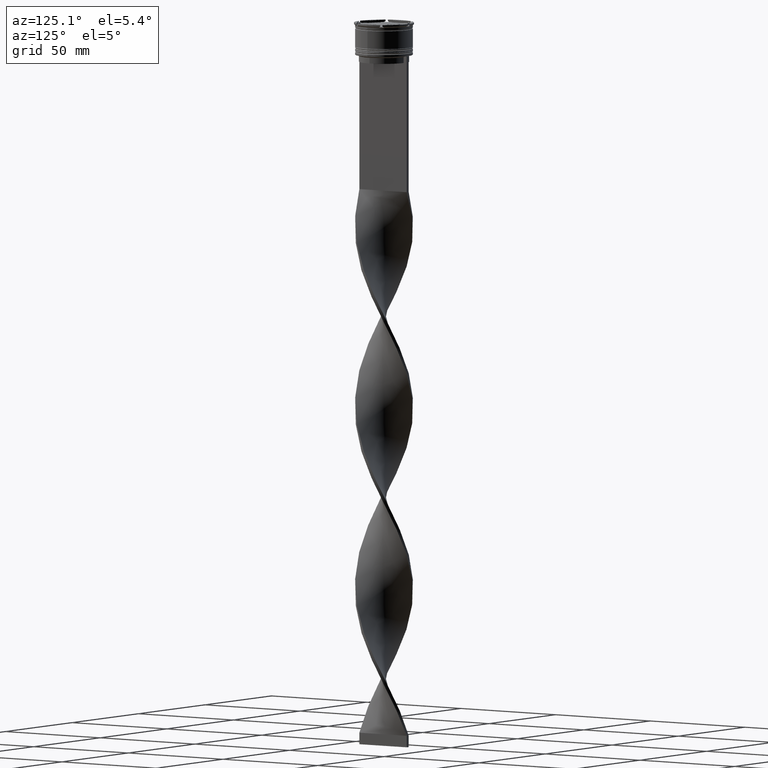
[diagram: clean part render]
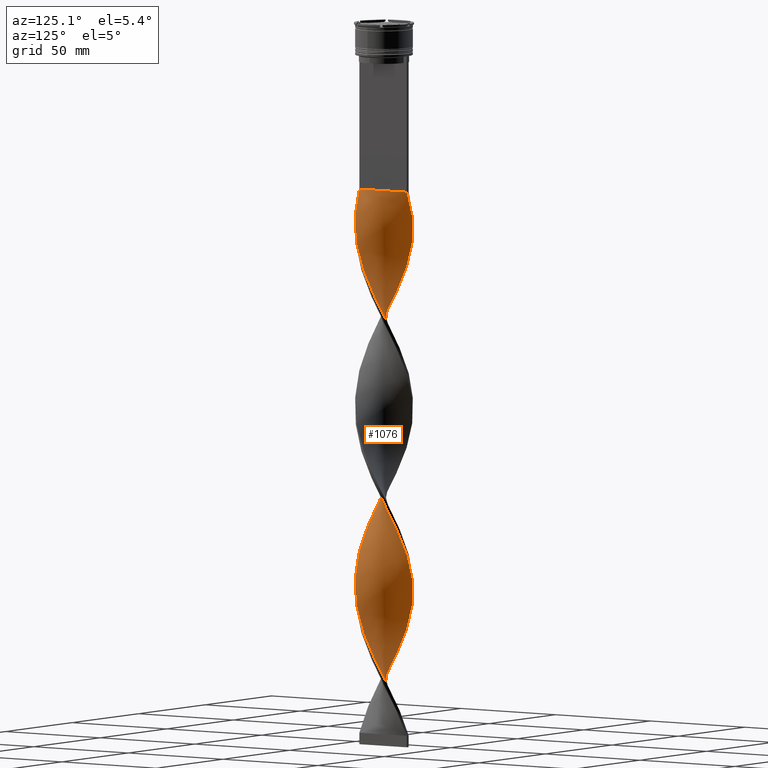
[diagram: same view with one face highlighted and labeled with its STEP entity id]
A machine part, auxiliary view. The second image highlights one B-rep face of the part: STEP entity #1076.
In plain terms, the highlighted face is a freeform B-spline surface patch.
Its self-contained STEP definition (entity closure, byte-faithful):
#5 = CARTESIAN_POINT ( 'NONE',  ( -11.87210446662093588, -4.103282305125621754, -122.1666666666666998 ) ) ;
#11 = CARTESIAN_POINT ( 'NONE',  ( 12.01658309743656261, 3.658622801590747819, -275.5666666666666060 ) ) ;
#23 = CARTESIAN_POINT ( 'NONE',  ( 12.22877840865904986, 2.696197068449238898, -116.2666666666666657 ) ) ;
#25 = CARTESIAN_POINT ( 'NONE',  ( -7.571135413668909742, 10.02305835011481605, -248.0333333333333314 ) ) ;
#36 = CARTESIAN_POINT ( 'NONE',  ( -10.29787303672001997, 7.192885447545555699, -255.9000000000000625 ) ) ;
#43 = CARTESIAN_POINT ( 'NONE',  ( 12.36783393232032502, -2.195557779805335841, -106.4333333333333513 ) ) ;
#47 = CARTESIAN_POINT ( 'NONE',  ( 12.11996919947063311, 3.149420042465475245, -198.8666666666666742 ) ) ;
#57 = CARTESIAN_POINT ( 'NONE',  ( 10.02305835011481605, -7.571135413668909742, -251.9666666666666970 ) ) ;
#62 = CARTESIAN_POINT ( 'NONE',  ( -2.696197068449241119, -12.22877840865904808, -305.0666666666666629 ) ) ;
#69 = CARTESIAN_POINT ( 'NONE',  ( -5.493386832225669814, -11.29630431837985682, -299.1666666666666856 ) ) ;
#74 = CARTESIAN_POINT ( 'NONE',  ( 10.79708867754994017, 6.343136139885610980, -281.4666666666666401 ) ) ;
#83 = CARTESIAN_POINT ( 'NONE',  ( 7.571135413668909742, -10.02305835011481783, -169.3666666666667027 ) ) ;
#84 = CARTESIAN_POINT ( 'NONE',  ( -1.214664557556535351, -12.46343010621939307, -226.3999999999999773 ) ) ;
#86 = CARTESIAN_POINT ( 'NONE',  ( -6.740552907874703514, 10.55355136890620038, -246.0666666666666629 ) ) ;
#106 = CARTESIAN_POINT ( 'NONE',  ( 3.658622801590746043, 12.01658309743656261, -224.4333333333333371 ) ) ;
#107 = CARTESIAN_POINT ( 'NONE',  ( 12.55902628011846645, -0.2337713353077312817, -267.6999999999999318 ) ) ;
#110 = CARTESIAN_POINT ( 'NONE',  ( 0.7500000000000002220, -12.50000000000000000, -73.00000000000001421 ) ) ;
#134 = CARTESIAN_POINT ( 'NONE',  ( 1.214664557556530688, -12.46343010621939484, -155.6000000000000227 ) ) ;
#135 = CARTESIAN_POINT ( 'NONE',  ( 12.01658309743656261, 3.658622801590747819, -275.5666666666666060 ) ) ;
#155 = CARTESIAN_POINT ( 'NONE',  ( -4.576004816908209705, -11.65644370790820794, -143.7999999999999829 ) ) ;
#156 = CARTESIAN_POINT ( 'NONE',  ( -7.571135413668918623, -10.02305835011481072, -212.6333333333333826 ) ) ;
#157 = LINE ( 'NONE', #1245, #2725 ) ;
#158 = ORIENTED_EDGE ( 'NONE', *, *, #1435, .F. ) ;
#178 = CARTESIAN_POINT ( 'NONE',  ( -12.50000000000000000, 0.7500000000000009992, -112.3333333333333428 ) ) ;
#179 = CARTESIAN_POINT ( 'NONE',  ( -7.192885447545552147, 10.29787303672002352, -165.4333333333333371 ) ) ;
#195 = CARTESIAN_POINT ( 'NONE',  ( 2.195557779805334064, -12.36783393232032680, -157.5666666666666629 ) ) ;
#226 = CARTESIAN_POINT ( 'NONE',  ( -11.29630431837985505, -5.493386832225671590, -200.8333333333333428 ) ) ;
#244 = CARTESIAN_POINT ( 'NONE',  ( 5.909970402080495511, -11.08404438769758293, -165.4333333333333655 ) ) ;
#248 = CARTESIAN_POINT ( 'NONE',  ( 4.103282305125623530, 11.87210446662093588, -141.8333333333333144 ) ) ;
#251 = EDGE_CURVE ( 'NONE', #840, #3129, #157, .T. ) ;
#273 = CARTESIAN_POINT ( 'NONE',  ( -12.01658309743656439, -3.658622801590741158, -196.9000000000000057 ) ) ;
#274 = CARTESIAN_POINT ( 'NONE',  ( -2.195557779805334508, 12.36783393232032502, -78.90000000000001990 ) ) ;
#296 = CARTESIAN_POINT ( 'NONE',  ( 2.195557779805335397, 12.36783393232032502, -145.7666666666666515 ) ) ;
#300 = CARTESIAN_POINT ( 'NONE',  ( 0.7500000000000002220, -12.50000000000000000, -73.00000000000001421 ) ) ;
#313 = CARTESIAN_POINT ( 'NONE',  ( 9.671873490467490342, 7.954078399437124247, -128.0666666666666629 ) ) ;
#314 = CARTESIAN_POINT ( 'NONE',  ( -9.671873490467488566, 7.954078399437126023, -96.60000000000000853 ) ) ;
#327 = CARTESIAN_POINT ( 'NONE',  ( -5.909970402080497287, 11.08404438769758293, -86.76666666666666572 ) ) ;
#335 = CARTESIAN_POINT ( 'NONE',  ( 12.55902628011846645, -0.2337713353077312817, -267.6999999999999318 ) ) ;
#349 = CARTESIAN_POINT ( 'NONE',  ( 5.909970402080499952, 11.08404438769758293, -137.9000000000000625 ) ) ;
#353 = CARTESIAN_POINT ( 'NONE',  ( -4.576004816908209705, -11.65644370790820794, -143.7999999999999829 ) ) ;
#367 = CARTESIAN_POINT ( 'NONE',  ( -10.02305835011481605, -7.571135413668910630, -287.3666666666667311 ) ) ;
#372 = CARTESIAN_POINT ( 'NONE',  ( -11.65644370790820794, 4.576004816908208817, -261.7999999999999545 ) ) ;
#377 = CARTESIAN_POINT ( 'NONE',  ( -0.7499999999999986677, 12.50000000000000000, -309.0000000000000000 ) ) ;
#386 = CARTESIAN_POINT ( 'NONE',  ( -12.01658309743656083, 3.658622801590749152, -263.7666666666667084 ) ) ;
#392 = CARTESIAN_POINT ( 'NONE',  ( 1.733771335307739747, 12.44097371988153533, -228.3666666666666458 ) ) ;
#406 = CARTESIAN_POINT ( 'NONE',  ( -8.308504678941934785, 9.369164850721755755, -250.0000000000000000 ) ) ;
#413 = CARTESIAN_POINT ( 'NONE',  ( 12.46343010621939484, -1.214664557556532909, -108.3999999999999915 ) ) ;
#416 = CARTESIAN_POINT ( 'NONE',  ( -12.22877840865904986, 2.696197068449240231, -265.7333333333333485 ) ) ;
#423 = CARTESIAN_POINT ( 'NONE',  ( 12.22877840865904986, 2.696197068449238898, -273.5999999999999659 ) ) ;
#432 = CARTESIAN_POINT ( 'NONE',  ( 12.46343010621939484, 1.214664557556529800, -194.9333333333333371 ) ) ;
#436 = CARTESIAN_POINT ( 'NONE',  ( 11.87210446662093410, 4.103282305125625307, -200.8333333333333428 ) ) ;
#448 = CARTESIAN_POINT ( 'NONE',  ( 5.909970402080496399, -11.08404438769758293, -165.4333333333333371 ) ) ;
#449 = CARTESIAN_POINT ( 'NONE',  ( 5.493386832225668925, -11.29630431837985682, -240.1666666666666856 ) ) ;
#453 = CARTESIAN_POINT ( 'NONE',  ( -3.658622801590750484, -12.01658309743656083, -303.0999999999999659 ) ) ;
#473 = CARTESIAN_POINT ( 'NONE',  ( 1.733771335307739747, 12.44097371988153533, -228.3666666666666742 ) ) ;
#474 = CARTESIAN_POINT ( 'NONE',  ( -11.65644370790820972, -4.576004816908206152, -198.8666666666666742 ) ) ;
#477 = CARTESIAN_POINT ( 'NONE',  ( 4.576004816908207928, -11.65644370790820794, -80.86666666666667425 ) ) ;
#500 = CARTESIAN_POINT ( 'NONE',  ( -0.7500000000000017764, -12.50000000000000000, -151.6666666666666856 ) ) ;
#501 = CARTESIAN_POINT ( 'NONE',  ( -10.55355136890619860, 6.740552907874705291, -175.2666666666666799 ) ) ;
#524 = CARTESIAN_POINT ( 'NONE',  ( 10.29787303672002530, -7.192885447545551258, -177.2333333333333485 ) ) ;
#525 = CARTESIAN_POINT ( 'NONE',  ( -12.46343010621939307, 1.214664557556534463, -187.0666666666666629 ) ) ;
#536 = CARTESIAN_POINT ( 'NONE',  ( -12.11996919947063311, -3.149420042465476577, -120.2000000000000028 ) ) ;
#547 = CARTESIAN_POINT ( 'NONE',  ( 10.02305835011481605, -7.571135413668910630, -251.9666666666666686 ) ) ;
#564 = CARTESIAN_POINT ( 'NONE',  ( -3.149420042465477465, 12.11996919947063134, -80.86666666666667425 ) ) ;
#569 = CARTESIAN_POINT ( 'NONE',  ( 12.01658309743656261, 3.658622801590747819, -118.2333333333333343 ) ) ;
#577 =( BOUNDED_CURVE ( )  B_SPLINE_CURVE ( 2, ( #1050, #2431, #3831, #1072, #1807, #732, #2493, #2474, #752, #1449, #1746, #2755, #713, #1027, #1788, #2091, #3160, #43, #413, #2798, #3138, #2069, #23, #3891, #1429, #1091, #3207, #1364, #2820, #2454, #3184, #2409, #3810, #349, #1727, #3119, #1382, #2778, #4167, #4187, #3850, #2109, #3504, #4206, #3305, #2586, #2560, #179, #1533, #2610, #2246, #3619, #501, #1555, #1881, #887, #2954, #4274, #525, #3570, #1927, #1199, #3984, #4343, #474, #1467, #1157, #4248, #1904, #2539, #3283, #156, #3638, #1515, #3935, #1223, #842, #2928, #84, #4313, #1132, #866, #2196, #2518, #1489, #449, #4005, #2266, #3661, #1831, #3226, #547, #2857, #2224, #3915, #797, #3592, #2173, #1855, #107, #817, #2887, #3259, #135, #2908, #4293, #1175, #3958, #2291, #1675, #3688, #956, #1625, #3374, #3069, #4388, #1244, #666, #4456, #3352, #978 ),
 .UNSPECIFIED., .F., .F. ) 
 B_SPLINE_CURVE_WITH_KNOTS ( ( 3, 2, 2, 2, 2, 2, 2, 2, 2, 2, 2, 2, 2, 2, 2, 2, 2, 2, 2, 2, 2, 2, 2, 2, 2, 2, 2, 2, 2, 2, 2, 2, 2, 2, 2, 2, 2, 2, 2, 2, 2, 2, 2, 2, 2, 2, 2, 2, 2, 2, 2, 2, 2, 2, 2, 2, 2, 2, 2, 2, 3 ),
 ( 0.000000000000000000, 0.01250000000000000243, 0.02500000000000000486, 0.03749999999999999861, 0.05000000000000000971, 0.06250000000000000000, 0.07499999999999999722, 0.08749999999999998057, 0.1000000000000000194, 0.1125000000000000028, 0.1250000000000000000, 0.1375000000000000111, 0.1499999999999999944, 0.1625000000000000056, 0.1749999999999999611, 0.1875000000000000000, 0.2000000000000000389, 0.2124999999999999944, 0.2250000000000000056, 0.2374999999999999611, 0.2500000000000000000, 0.2625000000000000111, 0.2750000000000000222, 0.2874999999999999778, 0.2999999999999999889, 0.3125000000000000000, 0.3250000000000000111, 0.3375000000000000777, 0.3499999999999999223, 0.3624999999999999889, 0.3750000000000000000, 0.3875000000000000111, 0.4000000000000000777, 0.4124999999999999223, 0.4249999999999999889, 0.4375000000000000000, 0.4500000000000000111, 0.4625000000000000777, 0.4749999999999999223, 0.4874999999999999889, 0.5000000000000000000, 0.5124999999999999556, 0.5250000000000000222, 0.5374999999999999778, 0.5500000000000000444, 0.5625000000000000000, 0.5749999999999999556, 0.5875000000000000222, 0.5999999999999999778, 0.6125000000000000444, 0.6250000000000000000, 0.6374999999999999556, 0.6500000000000000222, 0.6624999999999999778, 0.6750000000000001554, 0.6875000000000000000, 0.6999999999999998446, 0.7125000000000000222, 0.7249999999999999778, 0.7375000000000001554, 0.7500000000000000000 ),
 .UNSPECIFIED. ) 
 CURVE ( )  GEOMETRIC_REPRESENTATION_ITEM ( )  RATIONAL_B_SPLINE_CURVE ( ( 1.000000000000000000, 0.9969173337331279638, 1.000000000000000000, 0.9969173337331279638, 1.000000000000000000, 0.9969173337331279638, 1.000000000000000000, 0.9969173337331279638, 1.000000000000000000, 0.9969173337331279638, 1.000000000000000000, 0.9969173337331279638, 1.000000000000000000, 0.9969173337331279638, 1.000000000000000000, 0.9969173337331279638, 1.000000000000000000, 0.9969173337331279638, 1.000000000000000000, 0.9969173337331279638, 1.000000000000000000, 0.9969173337331279638, 1.000000000000000000, 0.9969173337331279638, 1.000000000000000000, 0.9969173337331279638, 1.000000000000000000, 0.9969173337331279638, 1.000000000000000000, 0.9969173337331279638, 1.000000000000000000, 0.9969173337331279638, 1.000000000000000000, 0.9969173337331279638, 1.000000000000000000, 0.9969173337331279638, 1.000000000000000000, 0.9969173337331279638, 1.000000000000000000, 0.9969173337331279638, 1.000000000000000000, 0.9969173337331279638, 1.000000000000000000, 0.9969173337331279638, 1.000000000000000000, 0.9969173337331279638, 1.000000000000000000, 0.9969173337331279638, 1.000000000000000000, 0.9969173337331279638, 1.000000000000000000, 0.9969173337331279638, 1.000000000000000000, 0.9969173337331279638, 1.000000000000000000, 0.9969173337331279638, 1.000000000000000000, 0.9969173337331279638, 1.000000000000000000, 0.9969173337331279638, 1.000000000000000000, 0.9969173337331279638, 1.000000000000000000, 0.9969173337331279638, 1.000000000000000000, 0.9969173337331279638, 1.000000000000000000, 0.9969173337331279638, 1.000000000000000000, 0.9969173337331279638, 1.000000000000000000, 0.9969173337331279638, 1.000000000000000000, 0.9969173337331279638, 1.000000000000000000, 0.9969173337331279638, 1.000000000000000000, 0.9969173337331279638, 1.000000000000000000, 0.9969173337331279638, 1.000000000000000000, 0.9969173337331279638, 1.000000000000000000, 0.9969173337331279638, 1.000000000000000000, 0.9969173337331279638, 1.000000000000000000, 0.9969173337331279638, 1.000000000000000000, 0.9969173337331279638, 1.000000000000000000, 0.9969173337331279638, 1.000000000000000000, 0.9969173337331279638, 1.000000000000000000, 0.9969173337331279638, 1.000000000000000000, 0.9969173337331279638, 1.000000000000000000, 0.9969173337331279638, 1.000000000000000000, 0.9969173337331279638, 1.000000000000000000, 0.9969173337331279638, 1.000000000000000000, 0.9969173337331279638, 1.000000000000000000, 0.9969173337331279638, 1.000000000000000000, 0.9969173337331279638, 1.000000000000000000, 0.9969173337331279638, 1.000000000000000000, 0.9969173337331279638, 1.000000000000000000, 0.9969173337331279638, 1.000000000000000000, 0.9969173337331279638, 1.000000000000000000, 0.9969173337331279638, 1.000000000000000000 ) ) 
 REPRESENTATION_ITEM ( '' )  );
#593 = CARTESIAN_POINT ( 'NONE',  ( 10.79708867754993840, -6.343136139885612756, -179.1999999999999886 ) ) ;
#596 = CARTESIAN_POINT ( 'NONE',  ( 5.909970402080499063, 11.08404438769758293, -137.9000000000000625 ) ) ;
#616 = CARTESIAN_POINT ( 'NONE',  ( 0.2337713353077321421, 12.55902628011846645, -149.7000000000000455 ) ) ;
#637 = CARTESIAN_POINT ( 'NONE',  ( 12.55902628011846645, -0.2337713353077312817, -110.3666666666666600 ) ) ;
#658 = CARTESIAN_POINT ( 'NONE',  ( -10.02305835011481250, 7.571135413668917735, -173.3000000000000114 ) ) ;
#659 = CARTESIAN_POINT ( 'NONE',  ( -11.65644370790820794, 4.576004816908208817, -104.4666666666666828 ) ) ;
#665 = CARTESIAN_POINT ( 'NONE',  ( -6.740552907874703514, 10.55355136890620038, -246.0666666666666629 ) ) ;
#666 = CARTESIAN_POINT ( 'NONE',  ( 2.195557779805335841, 12.36783393232032502, -303.0999999999999659 ) ) ;
#680 = CARTESIAN_POINT ( 'NONE',  ( 12.36783393232032502, -2.195557779805335397, -263.7666666666667652 ) ) ;
#693 = CARTESIAN_POINT ( 'NONE',  ( -7.192885447545556588, -10.29787303672002174, -137.9000000000000625 ) ) ;
#699 = CARTESIAN_POINT ( 'NONE',  ( 4.103282305125623530, 11.87210446662093588, -299.1666666666666856 ) ) ;
#713 = CARTESIAN_POINT ( 'NONE',  ( 10.55355136890620038, -6.740552907874703514, -96.60000000000000853 ) ) ;
#717 = CARTESIAN_POINT ( 'NONE',  ( 12.44097371988153533, -1.733771335307738859, -189.0333333333333314 ) ) ;
#724 = CARTESIAN_POINT ( 'NONE',  ( 8.715271351328699012, -9.045873944214958939, -248.0333333333333314 ) ) ;
#732 = CARTESIAN_POINT ( 'NONE',  ( 5.493386832225668925, -11.29630431837985682, -82.83333333333335702 ) ) ;
#734 = CARTESIAN_POINT ( 'NONE',  ( 5.493386832225676919, 11.29630431837985505, -220.5000000000000284 ) ) ;
#746 = CARTESIAN_POINT ( 'NONE',  ( -11.08404438769758293, -5.909970402080498175, -283.4333333333333940 ) ) ;
#752 = CARTESIAN_POINT ( 'NONE',  ( 7.954078399437126023, -9.671873490467488566, -88.73333333333334849 ) ) ;
#754 = CARTESIAN_POINT ( 'NONE',  ( -10.02305835011481605, -7.571135413668909742, -287.3666666666667311 ) ) ;
#761 = CARTESIAN_POINT ( 'NONE',  ( 1.733771335307731087, -12.44097371988153711, -232.3000000000000114 ) ) ;
#775 = CARTESIAN_POINT ( 'NONE',  ( 5.006626353603056856, -11.47807442715926030, -163.4666666666666401 ) ) ;
#780 = CARTESIAN_POINT ( 'NONE',  ( -9.671873490467488566, 7.954078399437126023, -253.9333333333333371 ) ) ;
#796 = CARTESIAN_POINT ( 'NONE',  ( 9.369164850721755755, 8.308504678941931232, -210.6666666666666572 ) ) ;
#797 = CARTESIAN_POINT ( 'NONE',  ( 11.87210446662093588, -4.103282305125623530, -259.8333333333334281 ) ) ;
#800 = CARTESIAN_POINT ( 'NONE',  ( -8.715271351328700788, -9.045873944214958939, -291.3000000000000682 ) ) ;
#816 = CARTESIAN_POINT ( 'NONE',  ( 6.343136139885613645, 10.79708867754993840, -218.5333333333333314 ) ) ;
#817 = CARTESIAN_POINT ( 'NONE',  ( 12.50000000000000000, 0.7499999999999994449, -269.6666666666666856 ) ) ;
#821 = CARTESIAN_POINT ( 'NONE',  ( 8.715271351328699012, -9.045873944214958939, -90.70000000000001705 ) ) ;
#840 = VERTEX_POINT ( 'NONE', #300 ) ;
#841 = CARTESIAN_POINT ( 'NONE',  ( -7.954078399437126912, -9.671873490467486789, -135.9333333333333371 ) ) ;
#842 = CARTESIAN_POINT ( 'NONE',  ( -3.149420042465480574, -12.11996919947063134, -222.4666666666666686 ) ) ;
#865 = CARTESIAN_POINT ( 'NONE',  ( 10.55355136890619860, 6.740552907874700850, -206.7333333333333201 ) ) ;
#866 = CARTESIAN_POINT ( 'NONE',  ( 1.733771335307731087, -12.44097371988153711, -232.3000000000000398 ) ) ;
#887 = CARTESIAN_POINT ( 'NONE',  ( -11.87210446662093410, 4.103282305125629748, -181.1666666666666856 ) ) ;
#897 = CARTESIAN_POINT ( 'NONE',  ( 4.103282305125619978, -11.87210446662093766, -161.5000000000000000 ) ) ;
#924 = CARTESIAN_POINT ( 'NONE',  ( 6.740552907874702626, -10.55355136890619860, -167.4000000000000057 ) ) ;
#929 = CARTESIAN_POINT ( 'NONE',  ( 11.29630431837985682, 5.493386832225668037, -122.1666666666666998 ) ) ;
#950 = CARTESIAN_POINT ( 'NONE',  ( -12.22877840865904986, -2.696197068449237122, -194.9333333333333371 ) ) ;
#956 = CARTESIAN_POINT ( 'NONE',  ( 7.571135413668912406, 10.02305835011481605, -291.3000000000000682 ) ) ;
#972 = CARTESIAN_POINT ( 'NONE',  ( -7.571135413668917735, -10.02305835011481072, -212.6333333333333826 ) ) ;
#978 = CARTESIAN_POINT ( 'NONE',  ( -0.7499999999999986677, 12.50000000000000000, -309.0000000000000000 ) ) ;
#979 = DIRECTION ( 'NONE',  ( 0.000000000000000000, 1.000000000000000000, 0.000000000000000000 ) ) ;
#994 = CARTESIAN_POINT ( 'NONE',  ( -12.36783393232032680, 2.195557779805332288, -185.0999999999999659 ) ) ;
#995 = CARTESIAN_POINT ( 'NONE',  ( -7.571135413668910630, 10.02305835011481605, -90.70000000000001705 ) ) ;
#1007 = CARTESIAN_POINT ( 'NONE',  ( -12.01658309743656083, 3.658622801590749596, -106.4333333333333513 ) ) ;
#1015 = CARTESIAN_POINT ( 'NONE',  ( -4.103282305125629748, -11.87210446662093410, -220.5000000000000284 ) ) ;
#1027 = CARTESIAN_POINT ( 'NONE',  ( 11.08404438769758293, -5.909970402080499952, -98.56666666666669130 ) ) ;
#1029 = CARTESIAN_POINT ( 'NONE',  ( -12.50000000000000000, 0.7500000000000009992, -112.3333333333333428 ) ) ;
#1050 = CARTESIAN_POINT ( 'NONE',  ( 0.7500000000000002220, -12.50000000000000000, -73.00000000000001421 ) ) ;
#1053 = CARTESIAN_POINT ( 'NONE',  ( 11.08404438769758649, 5.909970402080491958, -204.7666666666666799 ) ) ;
#1059 = CARTESIAN_POINT ( 'NONE',  ( 5.006626353603060409, 11.47807442715925852, -297.2000000000000455 ) ) ;
#1066 = CARTESIAN_POINT ( 'NONE',  ( -3.658622801590750040, -12.01658309743656083, -303.0999999999999659 ) ) ;
#1072 = CARTESIAN_POINT ( 'NONE',  ( 3.658622801590748264, -12.01658309743656083, -78.90000000000001990 ) ) ;
#1075 = CARTESIAN_POINT ( 'NONE',  ( -11.29630431837985682, 5.493386832225669814, -259.8333333333334281 ) ) ;
#1076 = ADVANCED_FACE ( 'NONE', ( #3790 ), #3397, .T. ) ;
#1081 = CARTESIAN_POINT ( 'NONE',  ( 11.65644370790820972, 4.576004816908207928, -277.5333333333333030 ) ) ;
#1087 = CARTESIAN_POINT ( 'NONE',  ( -4.103282305125622642, 11.87210446662093588, -240.1666666666666856 ) ) ;
#1091 = CARTESIAN_POINT ( 'NONE',  ( 11.29630431837985682, 5.493386832225668037, -122.1666666666666856 ) ) ;
#1093 = CARTESIAN_POINT ( 'NONE',  ( 12.55902628011846645, 0.2337713353077338907, -192.9666666666666970 ) ) ;
#1099 = CARTESIAN_POINT ( 'NONE',  ( 11.08404438769758293, -5.909970402080499063, -255.9000000000000909 ) ) ;
#1111 = CARTESIAN_POINT ( 'NONE',  ( 3.658622801590746043, 12.01658309743656261, -224.4333333333333655 ) ) ;
#1131 = CARTESIAN_POINT ( 'NONE',  ( 8.308504678941933008, -9.369164850721755755, -171.3333333333333428 ) ) ;
#1132 = CARTESIAN_POINT ( 'NONE',  ( 0.7500000000000002220, -12.50000000000000000, -230.3333333333333428 ) ) ;
#1136 = CARTESIAN_POINT ( 'NONE',  ( -12.50000000000000000, 0.7500000000000009992, -269.6666666666666856 ) ) ;
#1156 = CARTESIAN_POINT ( 'NONE',  ( -9.369164850721755755, -8.308504678941933008, -132.0000000000000000 ) ) ;
#1157 = CARTESIAN_POINT ( 'NONE',  ( -10.79708867754994017, -6.343136139885609204, -202.8000000000000114 ) ) ;
#1159 = CARTESIAN_POINT ( 'NONE',  ( 6.343136139885610980, -10.79708867754994017, -84.80000000000001137 ) ) ;
#1174 = CARTESIAN_POINT ( 'NONE',  ( -12.11996919947063311, -3.149420042465476577, -120.2000000000000028 ) ) ;
#1175 = CARTESIAN_POINT ( 'NONE',  ( 10.79708867754994017, 6.343136139885610980, -281.4666666666666401 ) ) ;
#1198 = CARTESIAN_POINT ( 'NONE',  ( -12.46343010621939484, -1.214664557556531577, -116.2666666666666657 ) ) ;
#1199 = CARTESIAN_POINT ( 'NONE',  ( -12.44097371988153711, -1.733771335307734640, -192.9666666666666970 ) ) ;
#1223 = CARTESIAN_POINT ( 'NONE',  ( -4.103282305125630636, -11.87210446662093410, -220.5000000000000284 ) ) ;
#1244 = CARTESIAN_POINT ( 'NONE',  ( 3.149420042465479241, 12.11996919947063134, -301.1333333333333258 ) ) ;
#1245 = CARTESIAN_POINT ( 'NONE',  ( 0.7500000000000002220, -12.50000000000000000, -73.00000000000001421 ) ) ;
#1255 = CARTESIAN_POINT ( 'NONE',  ( 9.671873490467486789, -7.954078399437126912, -175.2666666666666799 ) ) ;
#1259 = CARTESIAN_POINT ( 'NONE',  ( -7.954078399437124247, 9.671873490467490342, -167.4000000000000057 ) ) ;
#1287 = CARTESIAN_POINT ( 'NONE',  ( 12.46343010621939484, -1.214664557556532909, -108.3999999999999915 ) ) ;
#1308 = CARTESIAN_POINT ( 'NONE',  ( -5.493386832225668037, 11.29630431837985860, -161.5000000000000000 ) ) ;
#1310 = CARTESIAN_POINT ( 'NONE',  ( -5.006626353603058632, 11.47807442715926030, -84.80000000000001137 ) ) ;
#1332 = CARTESIAN_POINT ( 'NONE',  ( -11.87210446662093410, 4.103282305125628859, -181.1666666666667140 ) ) ;
#1343 = CARTESIAN_POINT ( 'NONE',  ( -5.006626353603058632, 11.47807442715926030, -84.80000000000001137 ) ) ;
#1353 = CARTESIAN_POINT ( 'NONE',  ( 9.369164850721755755, -8.308504678941934785, -92.66666666666667140 ) ) ;
#1361 = CARTESIAN_POINT ( 'NONE',  ( -5.909970402080498175, 11.08404438769758293, -244.0999999999999943 ) ) ;
#1364 = CARTESIAN_POINT ( 'NONE',  ( 10.29787303672002352, 7.192885447545553923, -126.1000000000000227 ) ) ;
#1366 = CARTESIAN_POINT ( 'NONE',  ( -10.02305835011481605, -7.571135413668909742, -130.0333333333333314 ) ) ;
#1372 = CARTESIAN_POINT ( 'NONE',  ( 12.11996919947063134, -3.149420042465478353, -261.7999999999999545 ) ) ;
#1378 = CARTESIAN_POINT ( 'NONE',  ( -2.195557779805334508, 12.36783393232032502, -236.2333333333333485 ) ) ;
#1382 = CARTESIAN_POINT ( 'NONE',  ( 3.149420042465479241, 12.11996919947063134, -143.7999999999999829 ) ) ;
#1385 = CARTESIAN_POINT ( 'NONE',  ( 12.46343010621939484, 1.214664557556529800, -194.9333333333333371 ) ) ;
#1391 = CARTESIAN_POINT ( 'NONE',  ( 12.44097371988153711, 1.733771335307730199, -271.6333333333332689 ) ) ;
#1398 = CARTESIAN_POINT ( 'NONE',  ( -6.343136139885612756, -10.79708867754993840, -297.2000000000000455 ) ) ;
#1405 = CARTESIAN_POINT ( 'NONE',  ( 11.29630431837985505, -5.493386832225676031, -181.1666666666667140 ) ) ;
#1411 = CARTESIAN_POINT ( 'NONE',  ( 8.308504678941934785, 9.369164850721753979, -289.3333333333333144 ) ) ;
#1420 = CARTESIAN_POINT ( 'NONE',  ( -10.79708867754993840, 6.343136139885611868, -257.8666666666666742 ) ) ;
#1429 = CARTESIAN_POINT ( 'NONE',  ( 11.65644370790820972, 4.576004816908207928, -120.2000000000000028 ) ) ;
#1432 = CARTESIAN_POINT ( 'NONE',  ( -5.006626353603058632, 11.47807442715926030, -242.1333333333333258 ) ) ;
#1435 = EDGE_CURVE ( 'NONE', #2643, #2422, #2750, .T. ) ;
#1440 = CARTESIAN_POINT ( 'NONE',  ( 12.46343010621939484, -1.214664557556532909, -265.7333333333333485 ) ) ;
#1445 = CARTESIAN_POINT ( 'NONE',  ( -1.733771335307732864, -12.44097371988153711, -307.0333333333333030 ) ) ;
#1449 = CARTESIAN_POINT ( 'NONE',  ( 8.715271351328699012, -9.045873944214958939, -90.70000000000001705 ) ) ;
#1451 = CARTESIAN_POINT ( 'NONE',  ( -8.308504678941934785, 9.369164850721755755, -250.0000000000000000 ) ) ;
#1457 = CARTESIAN_POINT ( 'NONE',  ( 9.671873490467490342, 7.954078399437124247, -285.3999999999999773 ) ) ;
#1466 = CARTESIAN_POINT ( 'NONE',  ( 10.02305835011481427, 7.571135413668915071, -208.7000000000000171 ) ) ;
#1467 = CARTESIAN_POINT ( 'NONE',  ( -11.29630431837985505, -5.493386832225671590, -200.8333333333333428 ) ) ;
#1469 = CARTESIAN_POINT ( 'NONE',  ( -9.045873944214958939, 8.715271351328699012, -251.9666666666666970 ) ) ;
#1488 = CARTESIAN_POINT ( 'NONE',  ( 2.195557779805333620, -12.36783393232032680, -157.5666666666666913 ) ) ;
#1489 = CARTESIAN_POINT ( 'NONE',  ( 4.576004816908207928, -11.65644370790820794, -238.1999999999999886 ) ) ;
#1493 = CARTESIAN_POINT ( 'NONE',  ( 2.696197068449239787, -12.22877840865904986, -76.93333333333333712 ) ) ;
#1514 = CARTESIAN_POINT ( 'NONE',  ( 4.576004816908211481, 11.65644370790820794, -222.4666666666666686 ) ) ;
#1515 = CARTESIAN_POINT ( 'NONE',  ( -5.909970402080496399, -11.08404438769758293, -216.5666666666666629 ) ) ;
#1532 = CARTESIAN_POINT ( 'NONE',  ( 9.045873944214955387, -8.715271351328706118, -173.3000000000000114 ) ) ;
#1533 = CARTESIAN_POINT ( 'NONE',  ( -7.954078399437124247, 9.671873490467490342, -167.4000000000000057 ) ) ;
#1554 = CARTESIAN_POINT ( 'NONE',  ( 12.44097371988153533, -1.733771335307738859, -189.0333333333333314 ) ) ;
#1555 = CARTESIAN_POINT ( 'NONE',  ( -11.08404438769758471, 5.909970402080495511, -177.2333333333333485 ) ) ;
#1593 = CARTESIAN_POINT ( 'NONE',  ( 8.308504678941933008, -9.369164850721755755, -171.3333333333333428 ) ) ;
#1598 = CARTESIAN_POINT ( 'NONE',  ( -10.29787303672002885, -7.192885447545550370, -204.7666666666666799 ) ) ;
#1614 = CARTESIAN_POINT ( 'NONE',  ( -11.08404438769758293, -5.909970402080497287, -126.1000000000000369 ) ) ;
#1617 = CARTESIAN_POINT ( 'NONE',  ( -11.08404438769758471, 5.909970402080495511, -177.2333333333333485 ) ) ;
#1625 = CARTESIAN_POINT ( 'NONE',  ( 6.740552907874705291, 10.55355136890619860, -293.2666666666666515 ) ) ;
#1649 = CARTESIAN_POINT ( 'NONE',  ( -11.65644370790820972, -4.576004816908206152, -198.8666666666666742 ) ) ;
#1670 = CARTESIAN_POINT ( 'NONE',  ( 10.79708867754994017, 6.343136139885610980, -124.1333333333333400 ) ) ;
#1675 = CARTESIAN_POINT ( 'NONE',  ( 9.045873944214958939, 8.715271351328699012, -287.3666666666667311 ) ) ;
#1690 = CARTESIAN_POINT ( 'NONE',  ( -5.909970402080495511, -11.08404438769758293, -216.5666666666666629 ) ) ;
#1691 = CARTESIAN_POINT ( 'NONE',  ( -12.22877840865904986, 2.696197068449240231, -108.3999999999999915 ) ) ;
#1703 = CARTESIAN_POINT ( 'NONE',  ( -9.045873944214958939, 8.715271351328699012, -94.63333333333335418 ) ) ;
#1715 = CARTESIAN_POINT ( 'NONE',  ( 9.045873944214958939, 8.715271351328699012, -287.3666666666667311 ) ) ;
#1727 = CARTESIAN_POINT ( 'NONE',  ( 5.006626353603060409, 11.47807442715925852, -139.8666666666666742 ) ) ;
#1746 = CARTESIAN_POINT ( 'NONE',  ( 9.369164850721755755, -8.308504678941934785, -92.66666666666667140 ) ) ;
#1748 = CARTESIAN_POINT ( 'NONE',  ( 12.22877840865904808, -2.696197068449241119, -187.0666666666666629 ) ) ;
#1761 = CARTESIAN_POINT ( 'NONE',  ( -10.55355136890619860, -6.740552907874702626, -285.3999999999999773 ) ) ;
#1765 = CARTESIAN_POINT ( 'NONE',  ( -10.79708867754993840, 6.343136139885611868, -257.8666666666666742 ) ) ;
#1772 = CARTESIAN_POINT ( 'NONE',  ( 10.55355136890620038, -6.740552907874703514, -253.9333333333333371 ) ) ;
#1781 = CARTESIAN_POINT ( 'NONE',  ( -7.954078399437126912, -9.671873490467486789, -293.2666666666666515 ) ) ;
#1788 = CARTESIAN_POINT ( 'NONE',  ( 11.47807442715925852, -5.006626353603059520, -100.5333333333333314 ) ) ;
#1791 = CARTESIAN_POINT ( 'NONE',  ( -12.44097371988153711, 1.733771335307731976, -267.6999999999999318 ) ) ;
#1796 = CARTESIAN_POINT ( 'NONE',  ( 6.343136139885610980, -10.79708867754994017, -242.1333333333333258 ) ) ;
#1806 = CARTESIAN_POINT ( 'NONE',  ( 12.55902628011846645, 0.2337713353077338907, -192.9666666666666970 ) ) ;
#1807 = CARTESIAN_POINT ( 'NONE',  ( 4.576004816908207928, -11.65644370790820794, -80.86666666666667425 ) ) ;
#1810 = CARTESIAN_POINT ( 'NONE',  ( 4.576004816908211481, 11.65644370790820794, -222.4666666666666686 ) ) ;
#1830 = CARTESIAN_POINT ( 'NONE',  ( 12.50000000000000000, -0.7500000000000025535, -191.0000000000000000 ) ) ;
#1831 = CARTESIAN_POINT ( 'NONE',  ( 8.715271351328699012, -9.045873944214958939, -248.0333333333333599 ) ) ;
#1833 = CARTESIAN_POINT ( 'NONE',  ( -10.55355136890619860, -6.740552907874702626, -285.3999999999999773 ) ) ;
#1854 = CARTESIAN_POINT ( 'NONE',  ( -1.214664557556532465, 12.46343010621939484, -234.2666666666666515 ) ) ;
#1855 = CARTESIAN_POINT ( 'NONE',  ( 12.46343010621939484, -1.214664557556532909, -265.7333333333333485 ) ) ;
#1859 = CARTESIAN_POINT ( 'NONE',  ( -0.7500000000000017764, -12.50000000000000000, -309.0000000000000000 ) ) ;
#1880 = CARTESIAN_POINT ( 'NONE',  ( 3.149420042465475689, -12.11996919947063311, -159.5333333333333314 ) ) ;
#1881 = CARTESIAN_POINT ( 'NONE',  ( -11.47807442715925852, 5.006626353603060409, -179.1999999999999886 ) ) ;
#1903 = CARTESIAN_POINT ( 'NONE',  ( 8.715271351328704341, 9.045873944214953610, -212.6333333333333826 ) ) ;
#1904 = CARTESIAN_POINT ( 'NONE',  ( -9.671873490467490342, -7.954078399437122471, -206.7333333333333201 ) ) ;
#1916 = CARTESIAN_POINT ( 'NONE',  ( -7.954078399437126912, -9.671873490467486789, -135.9333333333333371 ) ) ;
#1927 = CARTESIAN_POINT ( 'NONE',  ( -12.50000000000000000, -0.7499999999999980016, -191.0000000000000000 ) ) ;
#1946 = CARTESIAN_POINT ( 'NONE',  ( -8.308504678941934785, 9.369164850721755755, -92.66666666666667140 ) ) ;
#1949 = CARTESIAN_POINT ( 'NONE',  ( 3.149420042465479241, 12.11996919947063134, -143.7999999999999829 ) ) ;
#1967 = CARTESIAN_POINT ( 'NONE',  ( -12.22877840865904986, 2.696197068449240231, -108.3999999999999915 ) ) ;
#1971 = CARTESIAN_POINT ( 'NONE',  ( -4.576004816908207040, 11.65644370790820972, -159.5333333333333314 ) ) ;
#1972 = CARTESIAN_POINT ( 'NONE',  ( 0.7500000000000002220, 12.50000000000000000, -73.00000000000001421 ) ) ;
#1993 = CARTESIAN_POINT ( 'NONE',  ( -0.7499999999999986677, 12.50000000000000000, -151.6666666666666856 ) ) ;
#2017 = CARTESIAN_POINT ( 'NONE',  ( -6.343136139885609204, 10.79708867754994017, -163.4666666666666401 ) ) ;
#2034 = CARTESIAN_POINT ( 'NONE',  ( -10.79708867754994017, -6.343136139885609204, -202.8000000000000114 ) ) ;
#2035 = CARTESIAN_POINT ( 'NONE',  ( -11.29630431837985682, 5.493386832225669814, -102.5000000000000142 ) ) ;
#2040 = CARTESIAN_POINT ( 'NONE',  ( -12.50000000000000000, 0.7500000000000009992, -269.6666666666666856 ) ) ;
#2048 = CARTESIAN_POINT ( 'NONE',  ( -8.715271351328700788, -9.045873944214958939, -133.9666666666666686 ) ) ;
#2063 = CARTESIAN_POINT ( 'NONE',  ( -0.7500000000000017764, -12.50000000000000000, -309.0000000000000000 ) ) ;
#2069 = CARTESIAN_POINT ( 'NONE',  ( 12.44097371988153711, 1.733771335307730199, -114.3000000000000256 ) ) ;
#2072 = CARTESIAN_POINT ( 'NONE',  ( -2.696197068449241119, -12.22877840865904808, -147.7333333333333201 ) ) ;
#2081 = CARTESIAN_POINT ( 'NONE',  ( 3.149420042465479241, 12.11996919947063134, -301.1333333333333258 ) ) ;
#2088 = CARTESIAN_POINT ( 'NONE',  ( -9.671873490467488566, 7.954078399437126023, -253.9333333333333371 ) ) ;
#2091 = CARTESIAN_POINT ( 'NONE',  ( 11.87210446662093588, -4.103282305125623530, -102.5000000000000142 ) ) ;
#2094 = CARTESIAN_POINT ( 'NONE',  ( -3.149420042465477465, 12.11996919947063134, -238.1999999999999886 ) ) ;
#2101 = CARTESIAN_POINT ( 'NONE',  ( 1.214664557556534019, 12.46343010621939307, -305.0666666666666629 ) ) ;
#2109 = CARTESIAN_POINT ( 'NONE',  ( -1.733771335307729533, 12.44097371988153711, -153.6333333333333826 ) ) ;
#2111 = CARTESIAN_POINT ( 'NONE',  ( -2.195557779805334508, 12.36783393232032502, -236.2333333333333769 ) ) ;
#2118 = CARTESIAN_POINT ( 'NONE',  ( -5.006626353603061297, -11.47807442715925852, -218.5333333333333314 ) ) ;
#2124 = CARTESIAN_POINT ( 'NONE',  ( -9.369164850721755755, -8.308504678941933008, -289.3333333333333144 ) ) ;
#2132 = CARTESIAN_POINT ( 'NONE',  ( -9.369164850721755755, -8.308504678941933008, -289.3333333333333144 ) ) ;
#2139 = CARTESIAN_POINT ( 'NONE',  ( -1.214664557556535351, -12.46343010621939307, -226.3999999999999773 ) ) ;
#2155 = CARTESIAN_POINT ( 'NONE',  ( 6.740552907874702626, -10.55355136890619860, -167.4000000000000057 ) ) ;
#2158 = CARTESIAN_POINT ( 'NONE',  ( 11.47807442715926030, 5.006626353603056856, -202.8000000000000114 ) ) ;
#2172 = CARTESIAN_POINT ( 'NONE',  ( -12.55902628011846645, -0.2337713353077295608, -114.3000000000000256 ) ) ;
#2173 = CARTESIAN_POINT ( 'NONE',  ( 12.36783393232032502, -2.195557779805335841, -263.7666666666667084 ) ) ;
#2176 = CARTESIAN_POINT ( 'NONE',  ( -12.46343010621939484, -1.214664557556531577, -273.5999999999999659 ) ) ;
#2195 = CARTESIAN_POINT ( 'NONE',  ( -5.493386832225669814, -11.29630431837985682, -141.8333333333333428 ) ) ;
#2196 = CARTESIAN_POINT ( 'NONE',  ( 2.696197068449239787, -12.22877840865904986, -234.2666666666666515 ) ) ;
#2199 = CARTESIAN_POINT ( 'NONE',  ( 1.733771335307731087, -12.44097371988153711, -74.96666666666668277 ) ) ;
#2223 = CARTESIAN_POINT ( 'NONE',  ( -7.192885447545555699, -10.29787303672001997, -137.9000000000000625 ) ) ;
#2224 = CARTESIAN_POINT ( 'NONE',  ( 11.08404438769758293, -5.909970402080499952, -255.9000000000000625 ) ) ;
#2245 = CARTESIAN_POINT ( 'NONE',  ( 7.954078399437128688, 9.671873490467486789, -214.5999999999999943 ) ) ;
#2246 = CARTESIAN_POINT ( 'NONE',  ( -9.369164850721753979, 8.308504678941934785, -171.3333333333333428 ) ) ;
#2256 = CARTESIAN_POINT ( 'NONE',  ( -1.214664557556532465, 12.46343010621939484, -76.93333333333333712 ) ) ;
#2266 = CARTESIAN_POINT ( 'NONE',  ( 7.192885447545553923, -10.29787303672002352, -244.0999999999999943 ) ) ;
#2279 = CARTESIAN_POINT ( 'NONE',  ( -7.571135413668909742, 10.02305835011481605, -90.70000000000001705 ) ) ;
#2283 = CARTESIAN_POINT ( 'NONE',  ( -12.46343010621939307, 1.214664557556534463, -187.0666666666666629 ) ) ;
#2291 = CARTESIAN_POINT ( 'NONE',  ( 9.671873490467490342, 7.954078399437124247, -285.3999999999999773 ) ) ;
#2309 = CARTESIAN_POINT ( 'NONE',  ( 7.571135413668908853, -10.02305835011481783, -169.3666666666667027 ) ) ;
#2311 = CARTESIAN_POINT ( 'NONE',  ( 8.308504678941934785, 9.369164850721753979, -132.0000000000000000 ) ) ;
#2332 = CARTESIAN_POINT ( 'NONE',  ( -1.733771335307729533, 12.44097371988153711, -153.6333333333333826 ) ) ;
#2333 = CARTESIAN_POINT ( 'NONE',  ( -0.2337713353077304212, 12.55902628011846645, -74.96666666666668277 ) ) ;
#2354 = CARTESIAN_POINT ( 'NONE',  ( -6.740552907874707067, -10.55355136890619860, -214.5999999999999943 ) ) ;
#2376 = CARTESIAN_POINT ( 'NONE',  ( -12.44097371988153711, -1.733771335307734418, -192.9666666666666970 ) ) ;
#2377 = CARTESIAN_POINT ( 'NONE',  ( -10.79708867754993840, 6.343136139885611868, -100.5333333333333314 ) ) ;
#2390 = CARTESIAN_POINT ( 'NONE',  ( -11.47807442715926030, -5.006626353603058632, -124.1333333333333400 ) ) ;
#2398 = CARTESIAN_POINT ( 'NONE',  ( 0.2337713353077321421, 12.55902628011846645, -307.0333333333333030 ) ) ;
#2400 = ORIENTED_EDGE ( 'NONE', *, *, #3942, .F. ) ;
#2409 = CARTESIAN_POINT ( 'NONE',  ( 7.571135413668912406, 10.02305835011481605, -133.9666666666666686 ) ) ;
#2412 = CARTESIAN_POINT ( 'NONE',  ( -10.55355136890619860, -6.740552907874702626, -128.0666666666666629 ) ) ;
#2422 = VERTEX_POINT ( 'NONE', #3015 ) ;
#2425 = CARTESIAN_POINT ( 'NONE',  ( -12.46343010621939484, -1.214664557556531577, -273.5999999999999659 ) ) ;
#2431 = CARTESIAN_POINT ( 'NONE',  ( 1.733771335307731087, -12.44097371988153711, -74.96666666666668277 ) ) ;
#2435 = CARTESIAN_POINT ( 'NONE',  ( 12.50000000000000000, -0.7500000000000025535, -191.0000000000000000 ) ) ;
#2451 = CARTESIAN_POINT ( 'NONE',  ( -11.47807442715926030, -5.006626353603058632, -281.4666666666666401 ) ) ;
#2454 = CARTESIAN_POINT ( 'NONE',  ( 9.045873944214958939, 8.715271351328699012, -130.0333333333333314 ) ) ;
#2456 = CARTESIAN_POINT ( 'NONE',  ( 8.715271351328704341, 9.045873944214953610, -212.6333333333333826 ) ) ;
#2470 = CARTESIAN_POINT ( 'NONE',  ( -11.65644370790820794, 4.576004816908208817, -261.7999999999999545 ) ) ;
#2474 = CARTESIAN_POINT ( 'NONE',  ( 7.192885447545553923, -10.29787303672002352, -86.76666666666666572 ) ) ;
#2476 = CARTESIAN_POINT ( 'NONE',  ( -11.47807442715926030, -5.006626353603058632, -281.4666666666666401 ) ) ;
#2482 = CARTESIAN_POINT ( 'NONE',  ( 0.7500000000000002220, -12.50000000000000000, -230.3333333333333428 ) ) ;
#2492 = CARTESIAN_POINT ( 'NONE',  ( -11.87210446662093588, -4.103282305125621754, -122.1666666666666856 ) ) ;
#2493 = CARTESIAN_POINT ( 'NONE',  ( 6.343136139885610980, -10.79708867754994017, -84.80000000000001137 ) ) ;
#2495 = CARTESIAN_POINT ( 'NONE',  ( -7.954078399437126912, -9.671873490467486789, -293.2666666666666515 ) ) ;
#2517 = CARTESIAN_POINT ( 'NONE',  ( 12.22877840865904808, -2.696197068449241119, -187.0666666666666629 ) ) ;
#2518 = CARTESIAN_POINT ( 'NONE',  ( 3.658622801590748264, -12.01658309743656083, -236.2333333333333485 ) ) ;
#2520 = CARTESIAN_POINT ( 'NONE',  ( -12.36783393232032680, -2.195557779805334508, -275.5666666666666060 ) ) ;
#2538 = CARTESIAN_POINT ( 'NONE',  ( 5.493386832225676919, 11.29630431837985505, -220.5000000000000284 ) ) ;
#2539 = CARTESIAN_POINT ( 'NONE',  ( -9.045873944214957163, -8.715271351328702565, -208.7000000000000171 ) ) ;
#2542 = CARTESIAN_POINT ( 'NONE',  ( 7.192885447545554811, -10.29787303672002530, -86.76666666666666572 ) ) ;
#2559 = CARTESIAN_POINT ( 'NONE',  ( -11.47807442715926030, -5.006626353603058632, -124.1333333333333400 ) ) ;
#2560 = CARTESIAN_POINT ( 'NONE',  ( -6.343136139885609204, 10.79708867754994017, -163.4666666666666401 ) ) ;
#2585 = CARTESIAN_POINT ( 'NONE',  ( 11.08404438769758649, 5.909970402080491958, -204.7666666666666799 ) ) ;
#2586 = CARTESIAN_POINT ( 'NONE',  ( -5.493386832225668037, 11.29630431837985860, -161.5000000000000000 ) ) ;
#2599 = CARTESIAN_POINT ( 'NONE',  ( -10.29787303672002174, 7.192885447545556588, -98.56666666666669130 ) ) ;
#2610 = CARTESIAN_POINT ( 'NONE',  ( -8.715271351328699012, 9.045873944214960716, -169.3666666666667027 ) ) ;
#2622 = CARTESIAN_POINT ( 'NONE',  ( 3.149420042465475689, -12.11996919947063311, -159.5333333333333314 ) ) ;
#2643 = VERTEX_POINT ( 'NONE', #2742 ) ;
#2644 = CARTESIAN_POINT ( 'NONE',  ( -12.44097371988153711, 1.733771335307731976, -110.3666666666666600 ) ) ;
#2648 = CARTESIAN_POINT ( 'NONE',  ( 9.045873944214958939, 8.715271351328699012, -130.0333333333333314 ) ) ;
#2672 = CARTESIAN_POINT ( 'NONE',  ( 12.50000000000000000, 0.7499999999999994449, -112.3333333333333428 ) ) ;
#2695 = CARTESIAN_POINT ( 'NONE',  ( -9.671873490467490342, -7.954078399437122471, -206.7333333333333201 ) ) ;
#2718 = CARTESIAN_POINT ( 'NONE',  ( 11.47807442715925852, -5.006626353603059520, -100.5333333333333314 ) ) ;
#2719 = CARTESIAN_POINT ( 'NONE',  ( -6.740552907874703514, 10.55355136890620038, -88.73333333333334849 ) ) ;
#2725 = VECTOR ( 'NONE', #979, 1000.000000000000000 ) ;
#2732 = CARTESIAN_POINT ( 'NONE',  ( -9.671873490467488566, 7.954078399437126023, -96.60000000000000853 ) ) ;
#2742 = CARTESIAN_POINT ( 'NONE',  ( -0.7500000000000017764, -12.50000000000000000, -309.0000000000000000 ) ) ;
#2744 = CARTESIAN_POINT ( 'NONE',  ( 11.87210446662093588, -4.103282305125623530, -102.5000000000000000 ) ) ;
#2750 = B_SPLINE_CURVE_WITH_KNOTS ( 'NONE', 3,
 ( #4270, #3887, #3911, #3866 ),
 .UNSPECIFIED., .F., .F.,
 ( 4, 4 ),
 ( 0.000000000000000000, 1.000000000000000000 ),
 .UNSPECIFIED. ) ;
#2752 = CARTESIAN_POINT ( 'NONE',  ( -12.44097371988153711, 1.733771335307731976, -267.6999999999999318 ) ) ;
#2755 = CARTESIAN_POINT ( 'NONE',  ( 10.02305835011481605, -7.571135413668910630, -94.63333333333335418 ) ) ;
#2758 = CARTESIAN_POINT ( 'NONE',  ( -5.493386832225669814, -11.29630431837985682, -141.8333333333333144 ) ) ;
#2766 = CARTESIAN_POINT ( 'NONE',  ( 12.50000000000000000, 0.7499999999999994449, -269.6666666666666856 ) ) ;
#2778 = CARTESIAN_POINT ( 'NONE',  ( 2.195557779805335841, 12.36783393232032502, -145.7666666666666515 ) ) ;
#2780 = CARTESIAN_POINT ( 'NONE',  ( 7.954078399437128688, 9.671873490467486789, -214.5999999999999943 ) ) ;
#2784 = ORIENTED_EDGE ( 'NONE', *, *, #3152, .T. ) ;
#2793 = CARTESIAN_POINT ( 'NONE',  ( -5.493386832225669814, -11.29630431837985682, -299.1666666666666856 ) ) ;
#2798 = CARTESIAN_POINT ( 'NONE',  ( 12.55902628011846645, -0.2337713353077312817, -110.3666666666666742 ) ) ;
#2802 = CARTESIAN_POINT ( 'NONE',  ( 12.36783393232032857, 2.195557779805327403, -196.9000000000000057 ) ) ;
#2809 = CARTESIAN_POINT ( 'NONE',  ( 7.954078399437126023, -9.671873490467488566, -246.0666666666666629 ) ) ;
#2816 = CARTESIAN_POINT ( 'NONE',  ( -7.192885447545555699, -10.29787303672001997, -295.2333333333333485 ) ) ;
#2820 = CARTESIAN_POINT ( 'NONE',  ( 9.671873490467490342, 7.954078399437124247, -128.0666666666666629 ) ) ;
#2823 = CARTESIAN_POINT ( 'NONE',  ( -12.11996919947063311, -3.149420042465476577, -277.5333333333333030 ) ) ;
#2829 = CARTESIAN_POINT ( 'NONE',  ( 11.87210446662093588, -4.103282305125623530, -259.8333333333334281 ) ) ;
#2839 = CARTESIAN_POINT ( 'NONE',  ( 0.7500000000000002220, 12.50000000000000000, -73.00000000000001421 ) ) ;
#2841 = CARTESIAN_POINT ( 'NONE',  ( -4.576004816908209705, -11.65644370790820794, -301.1333333333333258 ) ) ;
#2846 = CARTESIAN_POINT ( 'NONE',  ( 6.740552907874705291, 10.55355136890619860, -293.2666666666666515 ) ) ;
#2847 = ORIENTED_EDGE ( 'NONE', *, *, #251, .F. ) ;
#2856 = CARTESIAN_POINT ( 'NONE',  ( 10.79708867754993840, -6.343136139885612756, -179.1999999999999886 ) ) ;
#2857 = CARTESIAN_POINT ( 'NONE',  ( 10.55355136890620038, -6.740552907874703514, -253.9333333333333371 ) ) ;
#2859 = CARTESIAN_POINT ( 'NONE',  ( -12.01658309743656083, 3.658622801590749596, -263.7666666666667652 ) ) ;
#2886 = CARTESIAN_POINT ( 'NONE',  ( -6.343136139885612756, -10.79708867754993840, -139.8666666666666742 ) ) ;
#2887 = CARTESIAN_POINT ( 'NONE',  ( 12.44097371988153711, 1.733771335307730199, -271.6333333333332689 ) ) ;
#2889 = CARTESIAN_POINT ( 'NONE',  ( 3.658622801590748708, -12.01658309743656083, -78.90000000000003411 ) ) ;
#2907 = CARTESIAN_POINT ( 'NONE',  ( 11.87210446662093410, 4.103282305125625307, -200.8333333333333428 ) ) ;
#2908 = CARTESIAN_POINT ( 'NONE',  ( 11.65644370790820972, 4.576004816908207928, -277.5333333333333030 ) ) ;
#2927 = CARTESIAN_POINT ( 'NONE',  ( -12.44097371988153711, 1.733771335307731976, -110.3666666666666742 ) ) ;
#2928 = CARTESIAN_POINT ( 'NONE',  ( -2.195557779805332732, -12.36783393232032680, -224.4333333333333371 ) ) ;
#2953 = CARTESIAN_POINT ( 'NONE',  ( 0.7500000000000002220, 12.50000000000000000, -230.3333333333333428 ) ) ;
#2954 = CARTESIAN_POINT ( 'NONE',  ( -12.11996919947063134, 3.149420042465479241, -183.1333333333333258 ) ) ;
#2969 = CARTESIAN_POINT ( 'NONE',  ( -12.46343010621939484, -1.214664557556531577, -116.2666666666666657 ) ) ;
#2994 = CARTESIAN_POINT ( 'NONE',  ( -9.045873944214957163, -8.715271351328702565, -208.7000000000000171 ) ) ;
#3012 = CARTESIAN_POINT ( 'NONE',  ( -4.103282305125622642, 11.87210446662093588, -82.83333333333335702 ) ) ;
#3015 = CARTESIAN_POINT ( 'NONE',  ( -0.7499999999999986677, 12.50000000000000000, -309.0000000000000000 ) ) ;
#3017 = CARTESIAN_POINT ( 'NONE',  ( 10.55355136890620038, -6.740552907874703514, -96.60000000000000853 ) ) ;
#3043 = CARTESIAN_POINT ( 'NONE',  ( 11.08404438769758293, -5.909970402080499063, -98.56666666666669130 ) ) ;
#3044 = CARTESIAN_POINT ( 'NONE',  ( -3.149420042465477465, 12.11996919947063134, -80.86666666666667425 ) ) ;
#3063 = CARTESIAN_POINT ( 'NONE',  ( 10.29787303672002530, 7.192885447545554811, -126.1000000000000369 ) ) ;
#3069 = CARTESIAN_POINT ( 'NONE',  ( 5.006626353603060409, 11.47807442715925852, -297.2000000000000455 ) ) ;
#3084 = CARTESIAN_POINT ( 'NONE',  ( 1.214664557556534019, 12.46343010621939307, -147.7333333333333201 ) ) ;
#3085 = CARTESIAN_POINT ( 'NONE',  ( -9.045873944214958939, 8.715271351328699012, -94.63333333333335418 ) ) ;
#3100 = CARTESIAN_POINT ( 'NONE',  ( -2.195557779805334508, 12.36783393232032502, -78.90000000000003411 ) ) ;
#3119 = CARTESIAN_POINT ( 'NONE',  ( 4.103282305125623530, 11.87210446662093588, -141.8333333333333428 ) ) ;
#3122 = CARTESIAN_POINT ( 'NONE',  ( -3.658622801590750484, -12.01658309743656083, -145.7666666666666515 ) ) ;
#3127 = CARTESIAN_POINT ( 'NONE',  ( 7.571135413668911518, 10.02305835011481605, -291.3000000000000682 ) ) ;
#3129 = VERTEX_POINT ( 'NONE', #2839 ) ;
#3138 = CARTESIAN_POINT ( 'NONE',  ( 12.50000000000000000, 0.7499999999999994449, -112.3333333333333428 ) ) ;
#3140 = CARTESIAN_POINT ( 'NONE',  ( 10.55355136890619860, 6.740552907874700850, -206.7333333333333201 ) ) ;
#3147 = CARTESIAN_POINT ( 'NONE',  ( 3.658622801590748708, -12.01658309743656083, -236.2333333333333769 ) ) ;
#3152 = EDGE_CURVE ( 'NONE', #840, #2422, #577, .T. ) ;
#3154 = CARTESIAN_POINT ( 'NONE',  ( -11.29630431837985682, 5.493386832225669814, -259.8333333333334281 ) ) ;
#3160 = CARTESIAN_POINT ( 'NONE',  ( 12.11996919947063134, -3.149420042465478353, -104.4666666666666828 ) ) ;
#3163 = CARTESIAN_POINT ( 'NONE',  ( -4.103282305125622642, 11.87210446662093588, -240.1666666666667140 ) ) ;
#3171 = CARTESIAN_POINT ( 'NONE',  ( 9.369164850721755755, -8.308504678941934785, -250.0000000000000000 ) ) ;
#3179 = CARTESIAN_POINT ( 'NONE',  ( -7.571135413668910630, 10.02305835011481605, -248.0333333333333599 ) ) ;
#3184 = CARTESIAN_POINT ( 'NONE',  ( 8.308504678941934785, 9.369164850721753979, -132.0000000000000000 ) ) ;
#3187 = CARTESIAN_POINT ( 'NONE',  ( -12.55902628011846645, -0.2337713353077295608, -271.6333333333332689 ) ) ;
#3193 = CARTESIAN_POINT ( 'NONE',  ( -3.149420042465480574, -12.11996919947063134, -222.4666666666666686 ) ) ;
#3206 = CARTESIAN_POINT ( 'NONE',  ( 12.11996919947063311, 3.149420042465475245, -198.8666666666666742 ) ) ;
#3207 = CARTESIAN_POINT ( 'NONE',  ( 10.79708867754994017, 6.343136139885610980, -124.1333333333333400 ) ) ;
#3209 = CARTESIAN_POINT ( 'NONE',  ( -11.87210446662093588, -4.103282305125621754, -279.4999999999999432 ) ) ;
#3225 = CARTESIAN_POINT ( 'NONE',  ( 7.192885447545552147, 10.29787303672002352, -216.5666666666666629 ) ) ;
#3226 = CARTESIAN_POINT ( 'NONE',  ( 9.369164850721755755, -8.308504678941934785, -250.0000000000000000 ) ) ;
#3229 = CARTESIAN_POINT ( 'NONE',  ( -11.08404438769758293, -5.909970402080497287, -283.4333333333333940 ) ) ;
#3258 = CARTESIAN_POINT ( 'NONE',  ( -12.36783393232032680, -2.195557779805334508, -118.2333333333333485 ) ) ;
#3259 = CARTESIAN_POINT ( 'NONE',  ( 12.22877840865904986, 2.696197068449238898, -273.5999999999999659 ) ) ;
#3282 = CARTESIAN_POINT ( 'NONE',  ( -8.715271351328700788, -9.045873944214958939, -133.9666666666666686 ) ) ;
#3283 = CARTESIAN_POINT ( 'NONE',  ( -8.308504678941934785, -9.369164850721752202, -210.6666666666666572 ) ) ;
#3304 = CARTESIAN_POINT ( 'NONE',  ( 2.696197068449242007, 12.22877840865904808, -226.3999999999999773 ) ) ;
#3305 = CARTESIAN_POINT ( 'NONE',  ( -4.576004816908207040, 11.65644370790820972, -159.5333333333333314 ) ) ;
#3317 = CARTESIAN_POINT ( 'NONE',  ( -0.7500000000000017764, -12.50000000000000000, -151.6666666666666856 ) ) ;
#3344 = CARTESIAN_POINT ( 'NONE',  ( 5.006626353603056856, -11.47807442715926030, -163.4666666666666401 ) ) ;
#3347 = CARTESIAN_POINT ( 'NONE',  ( -2.696197068449238010, 12.22877840865904986, -155.6000000000000227 ) ) ;
#3352 = CARTESIAN_POINT ( 'NONE',  ( 0.2337713353077321421, 12.55902628011846645, -307.0333333333333030 ) ) ;
#3368 = CARTESIAN_POINT ( 'NONE',  ( 12.22877840865904986, 2.696197068449238898, -116.2666666666666657 ) ) ;
#3369 = CARTESIAN_POINT ( 'NONE',  ( -1.214664557556532465, 12.46343010621939484, -76.93333333333333712 ) ) ;
#3374 = CARTESIAN_POINT ( 'NONE',  ( 5.909970402080499952, 11.08404438769758293, -295.2333333333333485 ) ) ;
#3391 = CARTESIAN_POINT ( 'NONE',  ( -8.715271351328699012, 9.045873944214960716, -169.3666666666667027 ) ) ;
#3397 =( BOUNDED_SURFACE ( )  B_SPLINE_SURFACE ( 1, 2, ( 
 ( #3996, #3674, #2256, #3100, #564, #3012, #1343, #327, #4038, #2279, #1946, #1703, #2732, #2599, #4127, #3650, #4148, #1007, #1967, #2644, #1029, #4489, #2969, #3471, #536, #5, #2390, #1614, #2412, #1366, #4399, #2048, #1916, #693, #3814, #2758, #353, #3122, #2072, #4015, #3317, #3451, #4355, #195, #2622, #897, #3344, #244, #924, #2309, #1593, #4377, #1255, #3704, #593, #1405, #3554, #3506, #1748, #717, #2435, #1093, #1385, #2802, #47, #436, #2158, #1053, #3140, #3917, #4251, #2456, #2780, #4169, #4209, #734, #1810, #1111, #3894, #392, #4191, #3835, #3852, #2111, #2094, #3163, #1432, #3490, #86, #25, #1451, #1469, #780, #3870, #1765, #1075, #372, #2859, #416, #1791, #1136, #3187, #2176, #2520, #2823, #3209, #2476, #3229, #1833, #754, #2132, #800, #2495, #3529, #3573, #69, #2841, #453, #4229, #3594, #1859 ),
 ( #110, #2199, #1493, #2889, #477, #4276, #1159, #2542, #3938, #821, #1353, #4042, #3017, #3043, #2718, #2744, #3438, #4428, #1287, #637, #2672, #3680, #3368, #569, #4381, #929, #1670, #3063, #313, #2648, #2311, #3708, #3730, #596, #4135, #248, #1949, #296, #3084, #616, #1993, #2332, #3347, #4069, #1971, #1308, #2017, #4112, #1259, #3391, #3416, #658, #3777, #1617, #4471, #1332, #4448, #994, #2283, #4404, #3753, #2376, #950, #273, #1649, #226, #2034, #1598, #2695, #2994, #4090, #972, #2354, #1690, #2118, #1015, #3193, #4174, #2139, #3458, #2482, #761, #4216, #3147, #4497, #3799, #1796, #3536, #2809, #724, #3171, #57, #1772, #1099, #3514, #2829, #1372, #680, #1440, #335, #2766, #1391, #423, #11, #1081, #3877, #74, #3495, #1457, #1715, #1411, #3127, #2846, #3842, #1059, #699, #2081, #3480, #2101, #2398, #377 ) ),
 .UNSPECIFIED., .F., .F., .F. ) 
 B_SPLINE_SURFACE_WITH_KNOTS ( ( 2, 2 ),
 ( 3, 2, 2, 2, 2, 2, 2, 2, 2, 2, 2, 2, 2, 2, 2, 2, 2, 2, 2, 2, 2, 2, 2, 2, 2, 2, 2, 2, 2, 2, 2, 2, 2, 2, 2, 2, 2, 2, 2, 2, 2, 2, 2, 2, 2, 2, 2, 2, 2, 2, 2, 2, 2, 2, 2, 2, 2, 2, 2, 2, 3 ),
 ( 0.000000000000000000, 1.000000000000000000 ),
 ( 0.000000000000000000, 0.01250000000000000069, 0.02500000000000000139, 0.03749999999999999861, 0.05000000000000000278, 0.06250000000000000000, 0.07499999999999999722, 0.08749999999999999445, 0.1000000000000000056, 0.1125000000000000028, 0.1250000000000000000, 0.1375000000000000111, 0.1499999999999999944, 0.1625000000000000056, 0.1749999999999999889, 0.1875000000000000000, 0.2000000000000000111, 0.2124999999999999944, 0.2250000000000000056, 0.2374999999999999889, 0.2500000000000000000, 0.2625000000000000111, 0.2750000000000000222, 0.2874999999999999778, 0.2999999999999999889, 0.3125000000000000000, 0.3250000000000000111, 0.3375000000000000222, 0.3499999999999999778, 0.3624999999999999889, 0.3750000000000000000, 0.3875000000000000111, 0.4000000000000000222, 0.4124999999999999778, 0.4249999999999999889, 0.4375000000000000000, 0.4500000000000000111, 0.4625000000000000222, 0.4749999999999999778, 0.4874999999999999889, 0.5000000000000000000, 0.5124999999999999556, 0.5250000000000000222, 0.5374999999999999778, 0.5500000000000000444, 0.5625000000000000000, 0.5749999999999999556, 0.5875000000000000222, 0.5999999999999999778, 0.6125000000000000444, 0.6250000000000000000, 0.6374999999999999556, 0.6500000000000000222, 0.6624999999999999778, 0.6750000000000000444, 0.6875000000000000000, 0.6999999999999999556, 0.7125000000000000222, 0.7249999999999999778, 0.7375000000000000444, 0.7500000000000000000 ),
 .UNSPECIFIED. ) 
 GEOMETRIC_REPRESENTATION_ITEM ( )  RATIONAL_B_SPLINE_SURFACE ( (
 ( 1.000000000000000000, 0.9969173337331279638, 1.000000000000000000, 0.9969173337331279638, 1.000000000000000000, 0.9969173337331279638, 1.000000000000000000, 0.9969173337331279638, 1.000000000000000000, 0.9969173337331279638, 1.000000000000000000, 0.9969173337331279638, 1.000000000000000000, 0.9969173337331279638, 1.000000000000000000, 0.9969173337331279638, 1.000000000000000000, 0.9969173337331279638, 1.000000000000000000, 0.9969173337331279638, 1.000000000000000000, 0.9969173337331279638, 1.000000000000000000, 0.9969173337331279638, 1.000000000000000000, 0.9969173337331279638, 1.000000000000000000, 0.9969173337331279638, 1.000000000000000000, 0.9969173337331279638, 1.000000000000000000, 0.9969173337331279638, 1.000000000000000000, 0.9969173337331279638, 1.000000000000000000, 0.9969173337331279638, 1.000000000000000000, 0.9969173337331279638, 1.000000000000000000, 0.9969173337331279638, 1.000000000000000000, 0.9969173337331279638, 1.000000000000000000, 0.9969173337331279638, 1.000000000000000000, 0.9969173337331279638, 1.000000000000000000, 0.9969173337331279638, 1.000000000000000000, 0.9969173337331279638, 1.000000000000000000, 0.9969173337331279638, 1.000000000000000000, 0.9969173337331279638, 1.000000000000000000, 0.9969173337331279638, 1.000000000000000000, 0.9969173337331279638, 1.000000000000000000, 0.9969173337331279638, 1.000000000000000000, 0.9969173337331279638, 1.000000000000000000, 0.9969173337331279638, 1.000000000000000000, 0.9969173337331279638, 1.000000000000000000, 0.9969173337331279638, 1.000000000000000000, 0.9969173337331279638, 1.000000000000000000, 0.9969173337331279638, 1.000000000000000000, 0.9969173337331279638, 1.000000000000000000, 0.9969173337331279638, 1.000000000000000000, 0.9969173337331279638, 1.000000000000000000, 0.9969173337331279638, 1.000000000000000000, 0.9969173337331279638, 1.000000000000000000, 0.9969173337331279638, 1.000000000000000000, 0.9969173337331279638, 1.000000000000000000, 0.9969173337331279638, 1.000000000000000000, 0.9969173337331279638, 1.000000000000000000, 0.9969173337331279638, 1.000000000000000000, 0.9969173337331279638, 1.000000000000000000, 0.9969173337331279638, 1.000000000000000000, 0.9969173337331279638, 1.000000000000000000, 0.9969173337331279638, 1.000000000000000000, 0.9969173337331279638, 1.000000000000000000, 0.9969173337331279638, 1.000000000000000000, 0.9969173337331279638, 1.000000000000000000, 0.9969173337331279638, 1.000000000000000000, 0.9969173337331279638, 1.000000000000000000, 0.9969173337331279638, 1.000000000000000000, 0.9969173337331279638, 1.000000000000000000, 0.9969173337331279638, 1.000000000000000000, 0.9969173337331279638, 1.000000000000000000, 0.9969173337331279638, 1.000000000000000000),
 ( 1.000000000000000000, 0.9969173337331279638, 1.000000000000000000, 0.9969173337331279638, 1.000000000000000000, 0.9969173337331279638, 1.000000000000000000, 0.9969173337331279638, 1.000000000000000000, 0.9969173337331279638, 1.000000000000000000, 0.9969173337331279638, 1.000000000000000000, 0.9969173337331279638, 1.000000000000000000, 0.9969173337331279638, 1.000000000000000000, 0.9969173337331279638, 1.000000000000000000, 0.9969173337331279638, 1.000000000000000000, 0.9969173337331279638, 1.000000000000000000, 0.9969173337331279638, 1.000000000000000000, 0.9969173337331279638, 1.000000000000000000, 0.9969173337331279638, 1.000000000000000000, 0.9969173337331279638, 1.000000000000000000, 0.9969173337331279638, 1.000000000000000000, 0.9969173337331279638, 1.000000000000000000, 0.9969173337331279638, 1.000000000000000000, 0.9969173337331279638, 1.000000000000000000, 0.9969173337331279638, 1.000000000000000000, 0.9969173337331279638, 1.000000000000000000, 0.9969173337331279638, 1.000000000000000000, 0.9969173337331279638, 1.000000000000000000, 0.9969173337331279638, 1.000000000000000000, 0.9969173337331279638, 1.000000000000000000, 0.9969173337331279638, 1.000000000000000000, 0.9969173337331279638, 1.000000000000000000, 0.9969173337331279638, 1.000000000000000000, 0.9969173337331279638, 1.000000000000000000, 0.9969173337331279638, 1.000000000000000000, 0.9969173337331279638, 1.000000000000000000, 0.9969173337331279638, 1.000000000000000000, 0.9969173337331279638, 1.000000000000000000, 0.9969173337331279638, 1.000000000000000000, 0.9969173337331279638, 1.000000000000000000, 0.9969173337331279638, 1.000000000000000000, 0.9969173337331279638, 1.000000000000000000, 0.9969173337331279638, 1.000000000000000000, 0.9969173337331279638, 1.000000000000000000, 0.9969173337331279638, 1.000000000000000000, 0.9969173337331279638, 1.000000000000000000, 0.9969173337331279638, 1.000000000000000000, 0.9969173337331279638, 1.000000000000000000, 0.9969173337331279638, 1.000000000000000000, 0.9969173337331279638, 1.000000000000000000, 0.9969173337331279638, 1.000000000000000000, 0.9969173337331279638, 1.000000000000000000, 0.9969173337331279638, 1.000000000000000000, 0.9969173337331279638, 1.000000000000000000, 0.9969173337331279638, 1.000000000000000000, 0.9969173337331279638, 1.000000000000000000, 0.9969173337331279638, 1.000000000000000000, 0.9969173337331279638, 1.000000000000000000, 0.9969173337331279638, 1.000000000000000000, 0.9969173337331279638, 1.000000000000000000, 0.9969173337331279638, 1.000000000000000000, 0.9969173337331279638, 1.000000000000000000, 0.9969173337331279638, 1.000000000000000000, 0.9969173337331279638, 1.000000000000000000, 0.9969173337331279638, 1.000000000000000000) ) ) 
 REPRESENTATION_ITEM ( '' )  SURFACE ( )  );
#3416 = CARTESIAN_POINT ( 'NONE',  ( -9.369164850721753979, 8.308504678941934785, -171.3333333333333428 ) ) ;
#3438 = CARTESIAN_POINT ( 'NONE',  ( 12.11996919947063134, -3.149420042465478353, -104.4666666666666828 ) ) ;
#3439 = CARTESIAN_POINT ( 'NONE',  ( -12.01658309743656083, 3.658622801590749152, -106.4333333333333513 ) ) ;
#3451 = CARTESIAN_POINT ( 'NONE',  ( 0.2337713353077288947, -12.55902628011846645, -153.6333333333333826 ) ) ;
#3458 = CARTESIAN_POINT ( 'NONE',  ( -0.2337713353077390810, -12.55902628011846822, -228.3666666666666458 ) ) ;
#3463 = CARTESIAN_POINT ( 'NONE',  ( -3.149420042465477465, 12.11996919947063134, -238.1999999999999886 ) ) ;
#3471 = CARTESIAN_POINT ( 'NONE',  ( -12.36783393232032680, -2.195557779805334508, -118.2333333333333343 ) ) ;
#3480 = CARTESIAN_POINT ( 'NONE',  ( 2.195557779805335397, 12.36783393232032502, -303.0999999999999659 ) ) ;
#3490 = CARTESIAN_POINT ( 'NONE',  ( -5.909970402080497287, 11.08404438769758293, -244.0999999999999659 ) ) ;
#3495 = CARTESIAN_POINT ( 'NONE',  ( 10.29787303672002530, 7.192885447545554811, -283.4333333333333940 ) ) ;
#3504 = CARTESIAN_POINT ( 'NONE',  ( -2.696197068449238010, 12.22877840865904986, -155.6000000000000227 ) ) ;
#3506 = CARTESIAN_POINT ( 'NONE',  ( 12.01658309743656261, -3.658622801590745155, -185.0999999999999659 ) ) ;
#3514 = CARTESIAN_POINT ( 'NONE',  ( 11.47807442715925852, -5.006626353603059520, -257.8666666666666742 ) ) ;
#3521 = CARTESIAN_POINT ( 'NONE',  ( -4.576004816908209705, -11.65644370790820794, -301.1333333333333258 ) ) ;
#3529 = CARTESIAN_POINT ( 'NONE',  ( -7.192885447545556588, -10.29787303672002174, -295.2333333333332916 ) ) ;
#3536 = CARTESIAN_POINT ( 'NONE',  ( 7.192885447545554811, -10.29787303672002530, -244.0999999999999659 ) ) ;
#3550 = CARTESIAN_POINT ( 'NONE',  ( -11.08404438769758293, -5.909970402080498175, -126.1000000000000227 ) ) ;
#3554 = CARTESIAN_POINT ( 'NONE',  ( 11.65644370790820794, -4.576004816908210593, -183.1333333333333258 ) ) ;
#3569 = CARTESIAN_POINT ( 'NONE',  ( -2.696197068449241119, -12.22877840865904808, -147.7333333333333201 ) ) ;
#3570 = CARTESIAN_POINT ( 'NONE',  ( -12.55902628011846822, 0.2337713353077382206, -189.0333333333333314 ) ) ;
#3573 = CARTESIAN_POINT ( 'NONE',  ( -6.343136139885612756, -10.79708867754993840, -297.2000000000000455 ) ) ;
#3591 = CARTESIAN_POINT ( 'NONE',  ( 12.36783393232032857, 2.195557779805326959, -196.9000000000000057 ) ) ;
#3592 = CARTESIAN_POINT ( 'NONE',  ( 12.11996919947063134, -3.149420042465478353, -261.7999999999999545 ) ) ;
#3594 = CARTESIAN_POINT ( 'NONE',  ( -1.733771335307732864, -12.44097371988153711, -307.0333333333333030 ) ) ;
#3618 = CARTESIAN_POINT ( 'NONE',  ( -1.733771335307732864, -12.44097371988153711, -149.7000000000000171 ) ) ;
#3619 = CARTESIAN_POINT ( 'NONE',  ( -10.02305835011481250, 7.571135413668918623, -173.3000000000000114 ) ) ;
#3637 = CARTESIAN_POINT ( 'NONE',  ( 0.2337713353077288947, -12.55902628011846645, -153.6333333333333826 ) ) ;
#3638 = CARTESIAN_POINT ( 'NONE',  ( -6.740552907874707067, -10.55355136890619860, -214.5999999999999943 ) ) ;
#3650 = CARTESIAN_POINT ( 'NONE',  ( -11.29630431837985682, 5.493386832225669814, -102.5000000000000000 ) ) ;
#3661 = CARTESIAN_POINT ( 'NONE',  ( 7.954078399437126023, -9.671873490467488566, -246.0666666666666629 ) ) ;
#3674 = CARTESIAN_POINT ( 'NONE',  ( -0.2337713353077304212, 12.55902628011846645, -74.96666666666668277 ) ) ;
#3680 = CARTESIAN_POINT ( 'NONE',  ( 12.44097371988153711, 1.733771335307730199, -114.3000000000000398 ) ) ;
#3688 = CARTESIAN_POINT ( 'NONE',  ( 8.308504678941934785, 9.369164850721753979, -289.3333333333333144 ) ) ;
#3704 = CARTESIAN_POINT ( 'NONE',  ( 10.29787303672002707, -7.192885447545552147, -177.2333333333333485 ) ) ;
#3708 = CARTESIAN_POINT ( 'NONE',  ( 7.571135413668911518, 10.02305835011481605, -133.9666666666666686 ) ) ;
#3730 = CARTESIAN_POINT ( 'NONE',  ( 6.740552907874705291, 10.55355136890619860, -135.9333333333333371 ) ) ;
#3753 = CARTESIAN_POINT ( 'NONE',  ( -12.50000000000000000, -0.7499999999999980016, -191.0000000000000000 ) ) ;
#3777 = CARTESIAN_POINT ( 'NONE',  ( -10.55355136890619860, 6.740552907874705291, -175.2666666666666799 ) ) ;
#3778 = CARTESIAN_POINT ( 'NONE',  ( -8.308504678941934785, 9.369164850721755755, -92.66666666666667140 ) ) ;
#3790 = FACE_OUTER_BOUND ( 'NONE', #3897, .T. ) ;
#3799 = CARTESIAN_POINT ( 'NONE',  ( 5.493386832225668925, -11.29630431837985682, -240.1666666666667140 ) ) ;
#3805 = CARTESIAN_POINT ( 'NONE',  ( -5.006626353603058632, 11.47807442715926030, -242.1333333333333258 ) ) ;
#3810 = CARTESIAN_POINT ( 'NONE',  ( 6.740552907874705291, 10.55355136890619860, -135.9333333333333371 ) ) ;
#3814 = CARTESIAN_POINT ( 'NONE',  ( -6.343136139885612756, -10.79708867754993840, -139.8666666666666742 ) ) ;
#3831 = CARTESIAN_POINT ( 'NONE',  ( 2.696197068449239787, -12.22877840865904986, -76.93333333333333712 ) ) ;
#3835 = CARTESIAN_POINT ( 'NONE',  ( -0.2337713353077304212, 12.55902628011846645, -232.3000000000000114 ) ) ;
#3842 = CARTESIAN_POINT ( 'NONE',  ( 5.909970402080499063, 11.08404438769758293, -295.2333333333332916 ) ) ;
#3847 = CARTESIAN_POINT ( 'NONE',  ( -8.715271351328700788, -9.045873944214958939, -291.3000000000000682 ) ) ;
#3850 = CARTESIAN_POINT ( 'NONE',  ( -0.7499999999999986677, 12.50000000000000000, -151.6666666666666856 ) ) ;
#3852 = CARTESIAN_POINT ( 'NONE',  ( -1.214664557556532465, 12.46343010621939484, -234.2666666666666515 ) ) ;
#3853 =( BOUNDED_CURVE ( )  B_SPLINE_CURVE ( 2, ( #1972, #2333, #3369, #274, #3044, #4429, #1310, #4472, #2719, #995, #3778, #3085, #314, #4113, #2377, #2035, #659, #3439, #1691, #2927, #178, #2172, #1198, #3258, #1174, #2492, #2559, #3550, #3983, #3957, #1156, #3282, #841, #2223, #2886, #2195, #155, #3890, #3569, #3618, #500, #3637, #134, #1488, #1880, #4273, #775, #448, #2155, #83, #1131, #1532, #4312, #524, #2856, #4247, #3914, #3934, #2517, #1554, #1830, #1806, #432, #3591, #3206, #2907, #4292, #2585, #865, #1466, #796, #1903, #2245, #3225, #816, #2538, #1514, #106, #3304, #473, #2953, #4342, #1854, #1378, #3463, #1087, #3805, #1361, #665, #3179, #406, #4180, #2088, #36, #1420, #3154, #2470, #386, #4202, #2752, #2040, #4162, #2425, #4480, #3864, #4140, #2451, #746, #1761, #367, #2124, #3847, #1781, #2816, #1398, #2793, #3521, #1066, #62, #1445, #2063 ),
 .UNSPECIFIED., .F., .F. ) 
 B_SPLINE_CURVE_WITH_KNOTS ( ( 3, 2, 2, 2, 2, 2, 2, 2, 2, 2, 2, 2, 2, 2, 2, 2, 2, 2, 2, 2, 2, 2, 2, 2, 2, 2, 2, 2, 2, 2, 2, 2, 2, 2, 2, 2, 2, 2, 2, 2, 2, 2, 2, 2, 2, 2, 2, 2, 2, 2, 2, 2, 2, 2, 2, 2, 2, 2, 2, 2, 3 ),
 ( 0.000000000000000000, 0.01250000000000000243, 0.02500000000000000486, 0.03749999999999999861, 0.05000000000000000971, 0.06250000000000000000, 0.07499999999999999722, 0.08749999999999998057, 0.1000000000000000194, 0.1125000000000000028, 0.1250000000000000000, 0.1375000000000000111, 0.1499999999999999944, 0.1625000000000000056, 0.1749999999999999611, 0.1875000000000000000, 0.2000000000000000389, 0.2124999999999999944, 0.2250000000000000056, 0.2374999999999999611, 0.2500000000000000000, 0.2625000000000000111, 0.2750000000000000222, 0.2874999999999999778, 0.2999999999999999889, 0.3125000000000000000, 0.3250000000000000111, 0.3375000000000000777, 0.3499999999999999223, 0.3624999999999999889, 0.3750000000000000000, 0.3875000000000000111, 0.4000000000000000777, 0.4124999999999999223, 0.4249999999999999889, 0.4375000000000000000, 0.4500000000000000111, 0.4625000000000000777, 0.4749999999999999223, 0.4874999999999999889, 0.5000000000000000000, 0.5124999999999999556, 0.5250000000000000222, 0.5374999999999999778, 0.5500000000000000444, 0.5625000000000000000, 0.5749999999999999556, 0.5875000000000000222, 0.5999999999999999778, 0.6125000000000000444, 0.6250000000000000000, 0.6374999999999999556, 0.6500000000000000222, 0.6624999999999999778, 0.6750000000000001554, 0.6875000000000000000, 0.6999999999999998446, 0.7125000000000000222, 0.7249999999999999778, 0.7375000000000001554, 0.7500000000000000000 ),
 .UNSPECIFIED. ) 
 CURVE ( )  GEOMETRIC_REPRESENTATION_ITEM ( )  RATIONAL_B_SPLINE_CURVE ( ( 1.000000000000000000, 0.9969173337331279638, 1.000000000000000000, 0.9969173337331279638, 1.000000000000000000, 0.9969173337331279638, 1.000000000000000000, 0.9969173337331279638, 1.000000000000000000, 0.9969173337331279638, 1.000000000000000000, 0.9969173337331279638, 1.000000000000000000, 0.9969173337331279638, 1.000000000000000000, 0.9969173337331279638, 1.000000000000000000, 0.9969173337331279638, 1.000000000000000000, 0.9969173337331279638, 1.000000000000000000, 0.9969173337331279638, 1.000000000000000000, 0.9969173337331279638, 1.000000000000000000, 0.9969173337331279638, 1.000000000000000000, 0.9969173337331279638, 1.000000000000000000, 0.9969173337331279638, 1.000000000000000000, 0.9969173337331279638, 1.000000000000000000, 0.9969173337331279638, 1.000000000000000000, 0.9969173337331279638, 1.000000000000000000, 0.9969173337331279638, 1.000000000000000000, 0.9969173337331279638, 1.000000000000000000, 0.9969173337331279638, 1.000000000000000000, 0.9969173337331279638, 1.000000000000000000, 0.9969173337331279638, 1.000000000000000000, 0.9969173337331279638, 1.000000000000000000, 0.9969173337331279638, 1.000000000000000000, 0.9969173337331279638, 1.000000000000000000, 0.9969173337331279638, 1.000000000000000000, 0.9969173337331279638, 1.000000000000000000, 0.9969173337331279638, 1.000000000000000000, 0.9969173337331279638, 1.000000000000000000, 0.9969173337331279638, 1.000000000000000000, 0.9969173337331279638, 1.000000000000000000, 0.9969173337331279638, 1.000000000000000000, 0.9969173337331279638, 1.000000000000000000, 0.9969173337331279638, 1.000000000000000000, 0.9969173337331279638, 1.000000000000000000, 0.9969173337331279638, 1.000000000000000000, 0.9969173337331279638, 1.000000000000000000, 0.9969173337331279638, 1.000000000000000000, 0.9969173337331279638, 1.000000000000000000, 0.9969173337331279638, 1.000000000000000000, 0.9969173337331279638, 1.000000000000000000, 0.9969173337331279638, 1.000000000000000000, 0.9969173337331279638, 1.000000000000000000, 0.9969173337331279638, 1.000000000000000000, 0.9969173337331279638, 1.000000000000000000, 0.9969173337331279638, 1.000000000000000000, 0.9969173337331279638, 1.000000000000000000, 0.9969173337331279638, 1.000000000000000000, 0.9969173337331279638, 1.000000000000000000, 0.9969173337331279638, 1.000000000000000000, 0.9969173337331279638, 1.000000000000000000, 0.9969173337331279638, 1.000000000000000000, 0.9969173337331279638, 1.000000000000000000, 0.9969173337331279638, 1.000000000000000000, 0.9969173337331279638, 1.000000000000000000, 0.9969173337331279638, 1.000000000000000000, 0.9969173337331279638, 1.000000000000000000, 0.9969173337331279638, 1.000000000000000000, 0.9969173337331279638, 1.000000000000000000 ) ) 
 REPRESENTATION_ITEM ( '' )  );
#3864 = CARTESIAN_POINT ( 'NONE',  ( -12.11996919947063311, -3.149420042465476577, -277.5333333333333030 ) ) ;
#3866 = CARTESIAN_POINT ( 'NONE',  ( -0.7499999999999986677, 12.50000000000000000, -309.0000000000000000 ) ) ;
#3870 = CARTESIAN_POINT ( 'NONE',  ( -10.29787303672002174, 7.192885447545556588, -255.9000000000000909 ) ) ;
#3877 = CARTESIAN_POINT ( 'NONE',  ( 11.29630431837985682, 5.493386832225668037, -279.4999999999999432 ) ) ;
#3887 = CARTESIAN_POINT ( 'NONE',  ( -0.7500000000000007772, -4.166666666666667851, -309.0000000000000000 ) ) ;
#3890 = CARTESIAN_POINT ( 'NONE',  ( -3.658622801590750040, -12.01658309743656083, -145.7666666666666515 ) ) ;
#3891 = CARTESIAN_POINT ( 'NONE',  ( 12.01658309743656261, 3.658622801590747819, -118.2333333333333485 ) ) ;
#3894 = CARTESIAN_POINT ( 'NONE',  ( 2.696197068449242007, 12.22877840865904808, -226.3999999999999773 ) ) ;
#3897 = EDGE_LOOP ( 'NONE', ( #2847, #2784, #158, #2400 ) ) ;
#3911 = CARTESIAN_POINT ( 'NONE',  ( -0.7499999999999996669, 4.166666666666667851, -309.0000000000000000 ) ) ;
#3914 = CARTESIAN_POINT ( 'NONE',  ( 11.65644370790820794, -4.576004816908210593, -183.1333333333333258 ) ) ;
#3915 = CARTESIAN_POINT ( 'NONE',  ( 11.47807442715925852, -5.006626353603059520, -257.8666666666666742 ) ) ;
#3917 = CARTESIAN_POINT ( 'NONE',  ( 10.02305835011481427, 7.571135413668914182, -208.7000000000000171 ) ) ;
#3934 = CARTESIAN_POINT ( 'NONE',  ( 12.01658309743656261, -3.658622801590745155, -185.0999999999999943 ) ) ;
#3935 = CARTESIAN_POINT ( 'NONE',  ( -5.006626353603061297, -11.47807442715925852, -218.5333333333333314 ) ) ;
#3938 = CARTESIAN_POINT ( 'NONE',  ( 7.954078399437126023, -9.671873490467488566, -88.73333333333334849 ) ) ;
#3942 = EDGE_CURVE ( 'NONE', #3129, #2643, #3853, .T. ) ;
#3957 = CARTESIAN_POINT ( 'NONE',  ( -10.02305835011481605, -7.571135413668910630, -130.0333333333333314 ) ) ;
#3958 = CARTESIAN_POINT ( 'NONE',  ( 10.29787303672002352, 7.192885447545553923, -283.4333333333333940 ) ) ;
#3983 = CARTESIAN_POINT ( 'NONE',  ( -10.55355136890619860, -6.740552907874702626, -128.0666666666666629 ) ) ;
#3984 = CARTESIAN_POINT ( 'NONE',  ( -12.22877840865904986, -2.696197068449237122, -194.9333333333333371 ) ) ;
#3996 = CARTESIAN_POINT ( 'NONE',  ( 0.7500000000000002220, 12.50000000000000000, -73.00000000000001421 ) ) ;
#4005 = CARTESIAN_POINT ( 'NONE',  ( 6.343136139885610980, -10.79708867754994017, -242.1333333333333258 ) ) ;
#4015 = CARTESIAN_POINT ( 'NONE',  ( -1.733771335307732864, -12.44097371988153711, -149.7000000000000455 ) ) ;
#4038 = CARTESIAN_POINT ( 'NONE',  ( -6.740552907874703514, 10.55355136890620038, -88.73333333333334849 ) ) ;
#4042 = CARTESIAN_POINT ( 'NONE',  ( 10.02305835011481605, -7.571135413668909742, -94.63333333333335418 ) ) ;
#4069 = CARTESIAN_POINT ( 'NONE',  ( -3.658622801590746931, 12.01658309743656261, -157.5666666666666629 ) ) ;
#4090 = CARTESIAN_POINT ( 'NONE',  ( -8.308504678941934785, -9.369164850721752202, -210.6666666666666572 ) ) ;
#4112 = CARTESIAN_POINT ( 'NONE',  ( -7.192885447545553035, 10.29787303672002530, -165.4333333333333655 ) ) ;
#4113 = CARTESIAN_POINT ( 'NONE',  ( -10.29787303672001997, 7.192885447545555699, -98.56666666666669130 ) ) ;
#4127 = CARTESIAN_POINT ( 'NONE',  ( -10.79708867754993840, 6.343136139885611868, -100.5333333333333314 ) ) ;
#4135 = CARTESIAN_POINT ( 'NONE',  ( 5.006626353603060409, 11.47807442715925852, -139.8666666666666742 ) ) ;
#4140 = CARTESIAN_POINT ( 'NONE',  ( -11.87210446662093588, -4.103282305125621754, -279.4999999999999432 ) ) ;
#4148 = CARTESIAN_POINT ( 'NONE',  ( -11.65644370790820794, 4.576004816908208817, -104.4666666666666828 ) ) ;
#4162 = CARTESIAN_POINT ( 'NONE',  ( -12.55902628011846645, -0.2337713353077295608, -271.6333333333332689 ) ) ;
#4167 = CARTESIAN_POINT ( 'NONE',  ( 1.214664557556534019, 12.46343010621939307, -147.7333333333333201 ) ) ;
#4169 = CARTESIAN_POINT ( 'NONE',  ( 7.192885447545553035, 10.29787303672002530, -216.5666666666666629 ) ) ;
#4174 = CARTESIAN_POINT ( 'NONE',  ( -2.195557779805333176, -12.36783393232032680, -224.4333333333333655 ) ) ;
#4180 = CARTESIAN_POINT ( 'NONE',  ( -9.045873944214958939, 8.715271351328699012, -251.9666666666666686 ) ) ;
#4187 = CARTESIAN_POINT ( 'NONE',  ( 0.2337713353077321421, 12.55902628011846645, -149.7000000000000171 ) ) ;
#4191 = CARTESIAN_POINT ( 'NONE',  ( 0.7500000000000002220, 12.50000000000000000, -230.3333333333333428 ) ) ;
#4202 = CARTESIAN_POINT ( 'NONE',  ( -12.22877840865904986, 2.696197068449240231, -265.7333333333333485 ) ) ;
#4206 = CARTESIAN_POINT ( 'NONE',  ( -3.658622801590746931, 12.01658309743656261, -157.5666666666666913 ) ) ;
#4209 = CARTESIAN_POINT ( 'NONE',  ( 6.343136139885613645, 10.79708867754993840, -218.5333333333333314 ) ) ;
#4216 = CARTESIAN_POINT ( 'NONE',  ( 2.696197068449239787, -12.22877840865904986, -234.2666666666666515 ) ) ;
#4229 = CARTESIAN_POINT ( 'NONE',  ( -2.696197068449241119, -12.22877840865904808, -305.0666666666666629 ) ) ;
#4247 = CARTESIAN_POINT ( 'NONE',  ( 11.29630431837985505, -5.493386832225676031, -181.1666666666666856 ) ) ;
#4248 = CARTESIAN_POINT ( 'NONE',  ( -10.29787303672002707, -7.192885447545549482, -204.7666666666666799 ) ) ;
#4251 = CARTESIAN_POINT ( 'NONE',  ( 9.369164850721755755, 8.308504678941931232, -210.6666666666666572 ) ) ;
#4270 = CARTESIAN_POINT ( 'NONE',  ( -0.7500000000000017764, -12.50000000000000000, -309.0000000000000000 ) ) ;
#4273 = CARTESIAN_POINT ( 'NONE',  ( 4.103282305125619978, -11.87210446662093766, -161.5000000000000000 ) ) ;
#4274 = CARTESIAN_POINT ( 'NONE',  ( -12.36783393232032680, 2.195557779805331844, -185.0999999999999943 ) ) ;
#4276 = CARTESIAN_POINT ( 'NONE',  ( 5.493386832225668925, -11.29630431837985682, -82.83333333333335702 ) ) ;
#4292 = CARTESIAN_POINT ( 'NONE',  ( 11.47807442715926030, 5.006626353603056856, -202.8000000000000114 ) ) ;
#4293 = CARTESIAN_POINT ( 'NONE',  ( 11.29630431837985682, 5.493386832225668037, -279.4999999999999432 ) ) ;
#4312 = CARTESIAN_POINT ( 'NONE',  ( 9.671873490467486789, -7.954078399437126912, -175.2666666666666799 ) ) ;
#4313 = CARTESIAN_POINT ( 'NONE',  ( -0.2337713353077390810, -12.55902628011846822, -228.3666666666666742 ) ) ;
#4342 = CARTESIAN_POINT ( 'NONE',  ( -0.2337713353077304212, 12.55902628011846645, -232.3000000000000398 ) ) ;
#4343 = CARTESIAN_POINT ( 'NONE',  ( -12.01658309743656439, -3.658622801590741158, -196.9000000000000057 ) ) ;
#4355 = CARTESIAN_POINT ( 'NONE',  ( 1.214664557556530688, -12.46343010621939484, -155.6000000000000227 ) ) ;
#4377 = CARTESIAN_POINT ( 'NONE',  ( 9.045873944214955387, -8.715271351328706118, -173.3000000000000114 ) ) ;
#4381 = CARTESIAN_POINT ( 'NONE',  ( 11.65644370790820972, 4.576004816908207928, -120.2000000000000028 ) ) ;
#4388 = CARTESIAN_POINT ( 'NONE',  ( 4.103282305125623530, 11.87210446662093588, -299.1666666666666856 ) ) ;
#4399 = CARTESIAN_POINT ( 'NONE',  ( -9.369164850721755755, -8.308504678941933008, -132.0000000000000000 ) ) ;
#4404 = CARTESIAN_POINT ( 'NONE',  ( -12.55902628011846822, 0.2337713353077382206, -189.0333333333333314 ) ) ;
#4428 = CARTESIAN_POINT ( 'NONE',  ( 12.36783393232032502, -2.195557779805335397, -106.4333333333333513 ) ) ;
#4429 = CARTESIAN_POINT ( 'NONE',  ( -4.103282305125622642, 11.87210446662093588, -82.83333333333335702 ) ) ;
#4448 = CARTESIAN_POINT ( 'NONE',  ( -12.11996919947063134, 3.149420042465479241, -183.1333333333333258 ) ) ;
#4456 = CARTESIAN_POINT ( 'NONE',  ( 1.214664557556534019, 12.46343010621939307, -305.0666666666666629 ) ) ;
#4471 = CARTESIAN_POINT ( 'NONE',  ( -11.47807442715925852, 5.006626353603060409, -179.1999999999999886 ) ) ;
#4472 = CARTESIAN_POINT ( 'NONE',  ( -5.909970402080498175, 11.08404438769758293, -86.76666666666666572 ) ) ;
#4480 = CARTESIAN_POINT ( 'NONE',  ( -12.36783393232032680, -2.195557779805334508, -275.5666666666666060 ) ) ;
#4489 = CARTESIAN_POINT ( 'NONE',  ( -12.55902628011846645, -0.2337713353077295608, -114.3000000000000398 ) ) ;
#4497 = CARTESIAN_POINT ( 'NONE',  ( 4.576004816908207928, -11.65644370790820794, -238.1999999999999886 ) ) ;